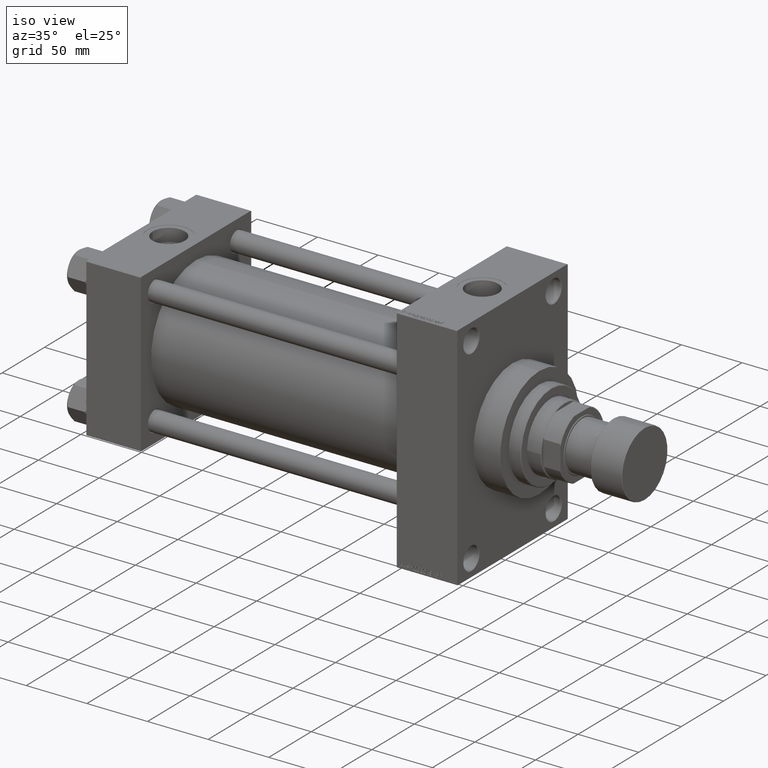
[diagram: clean part render]
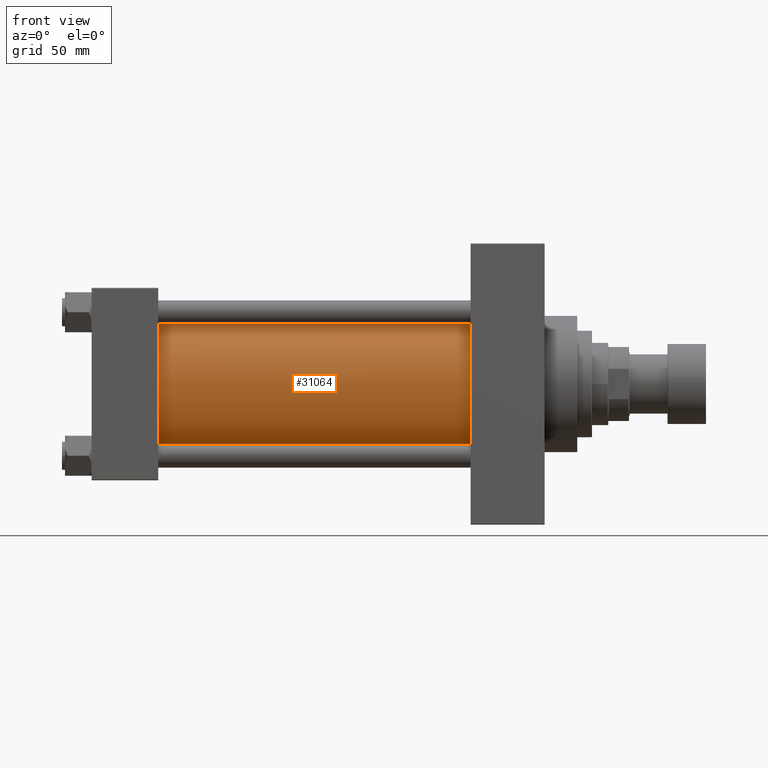
[diagram: tour spotlight — one face highlighted and labeled with its STEP entity id]
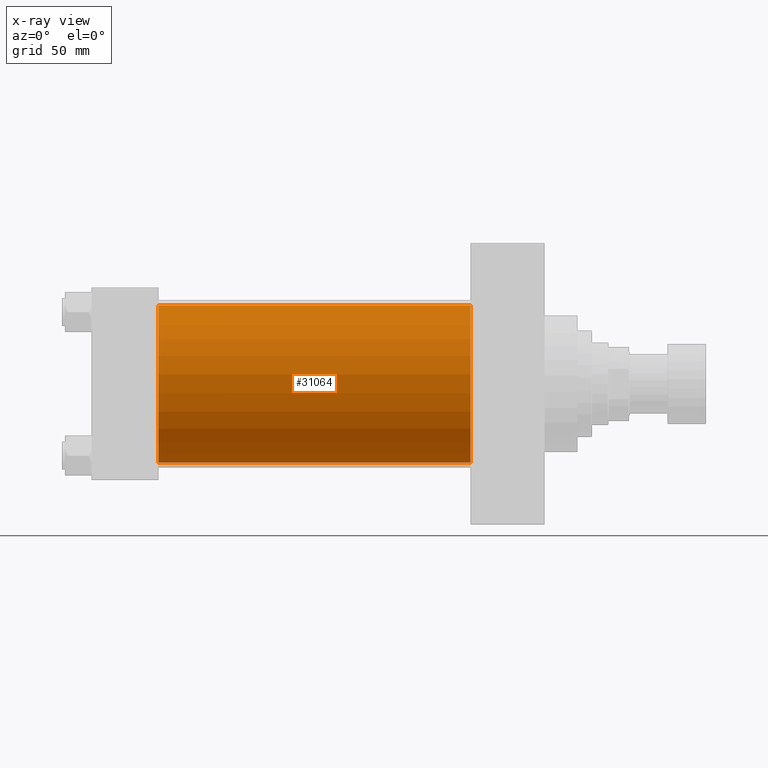
[diagram: x-ray of the same camera — body ghosted, this tour face saturated]
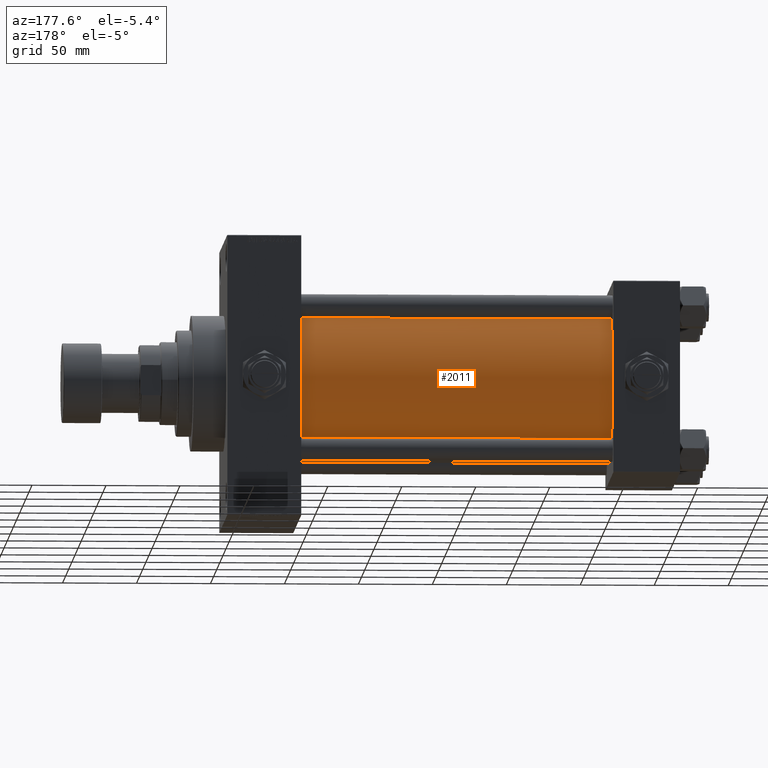
[diagram: tour spotlight — one face highlighted and labeled with its STEP entity id]
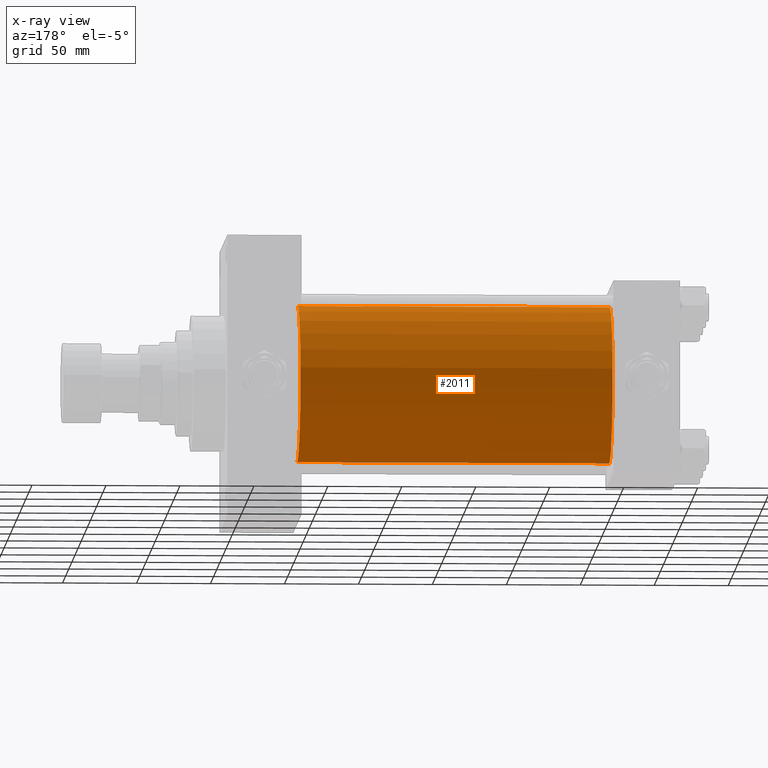
[diagram: x-ray of the same camera — body ghosted, this tour face saturated]
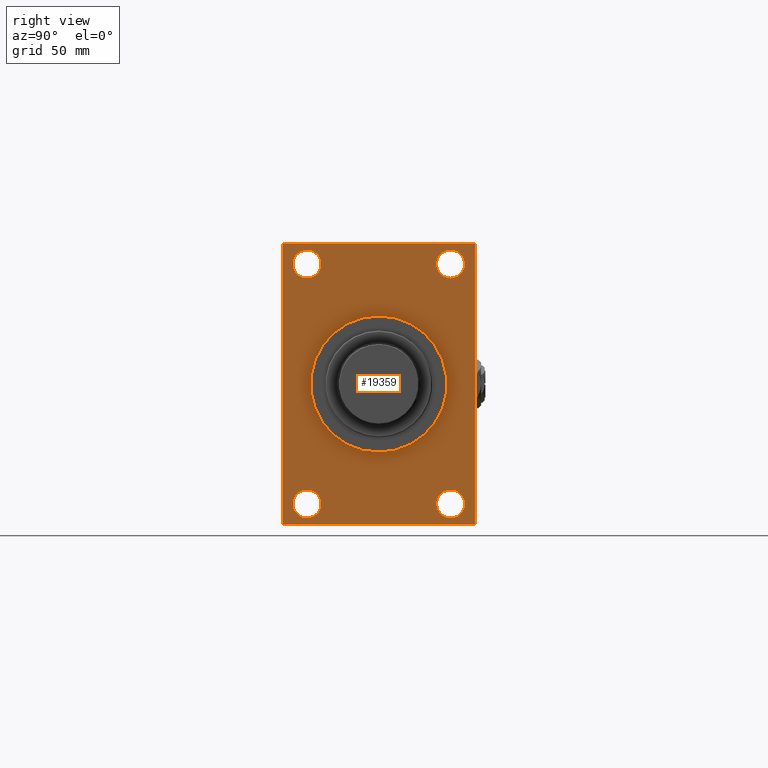
[diagram: tour spotlight — one face highlighted and labeled with its STEP entity id]
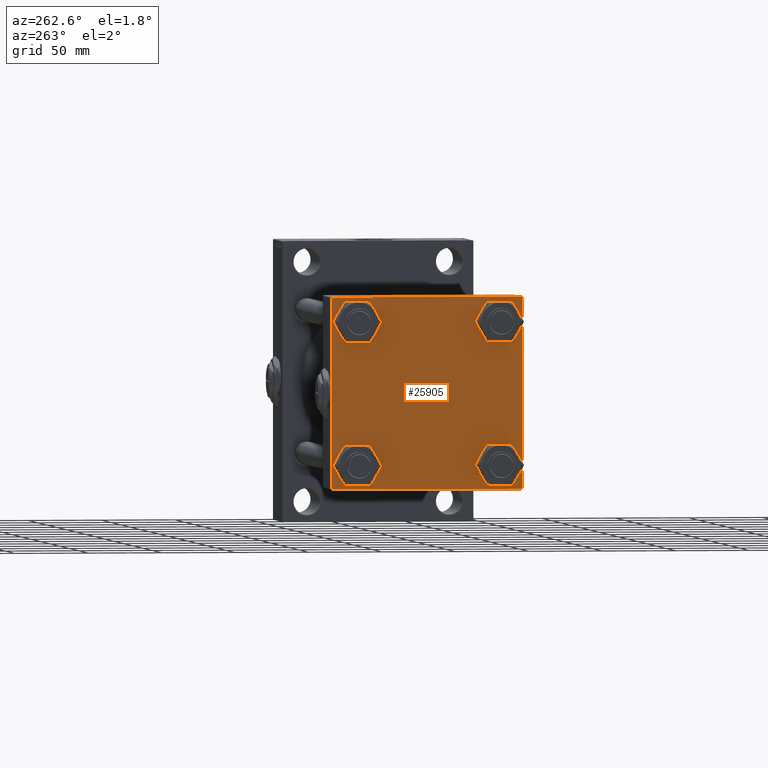
[diagram: tour spotlight — one face highlighted and labeled with its STEP entity id]
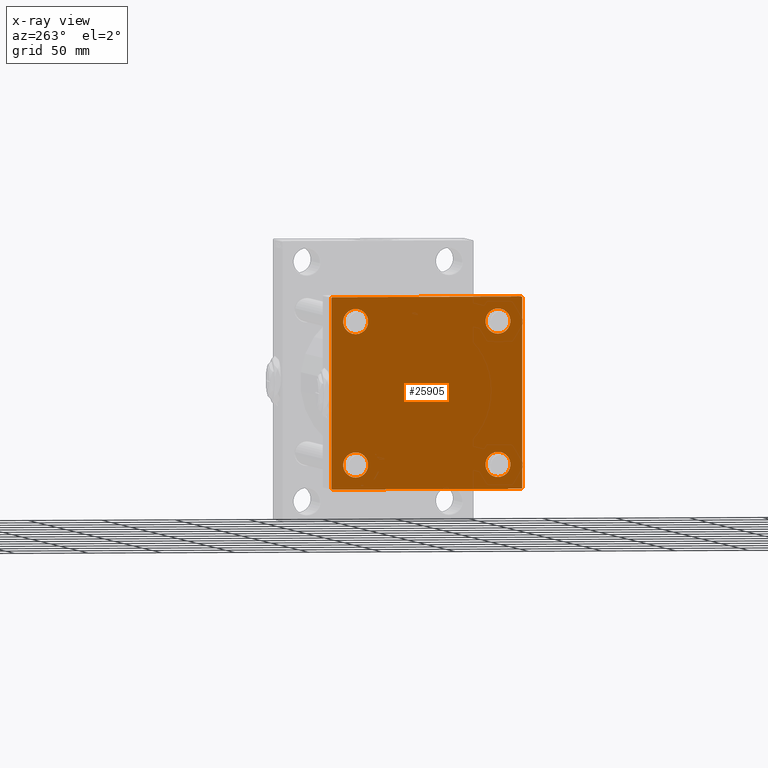
[diagram: x-ray of the same camera — body ghosted, this tour face saturated]
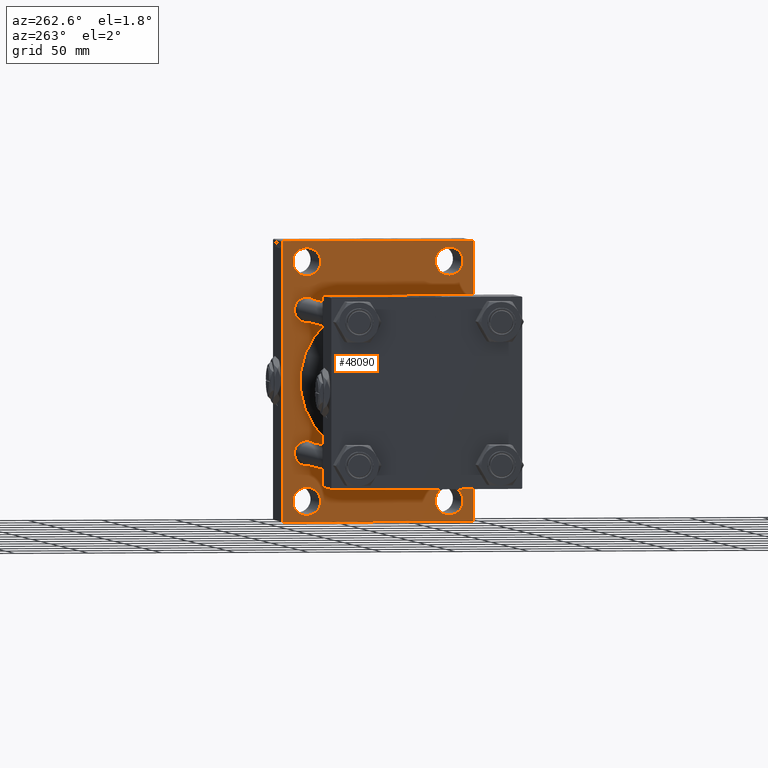
[diagram: tour spotlight — one face highlighted and labeled with its STEP entity id]
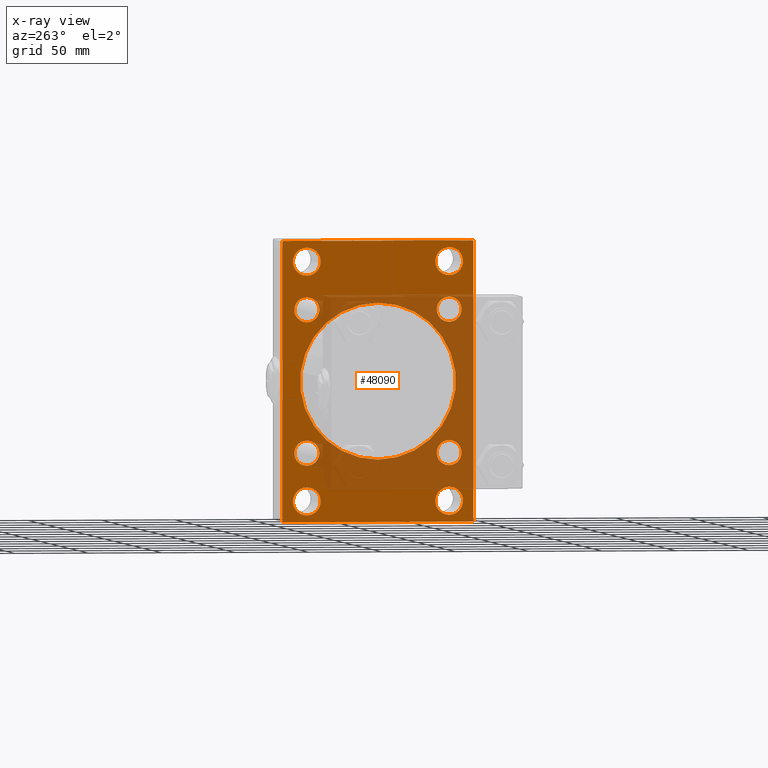
[diagram: x-ray of the same camera — body ghosted, this tour face saturated]
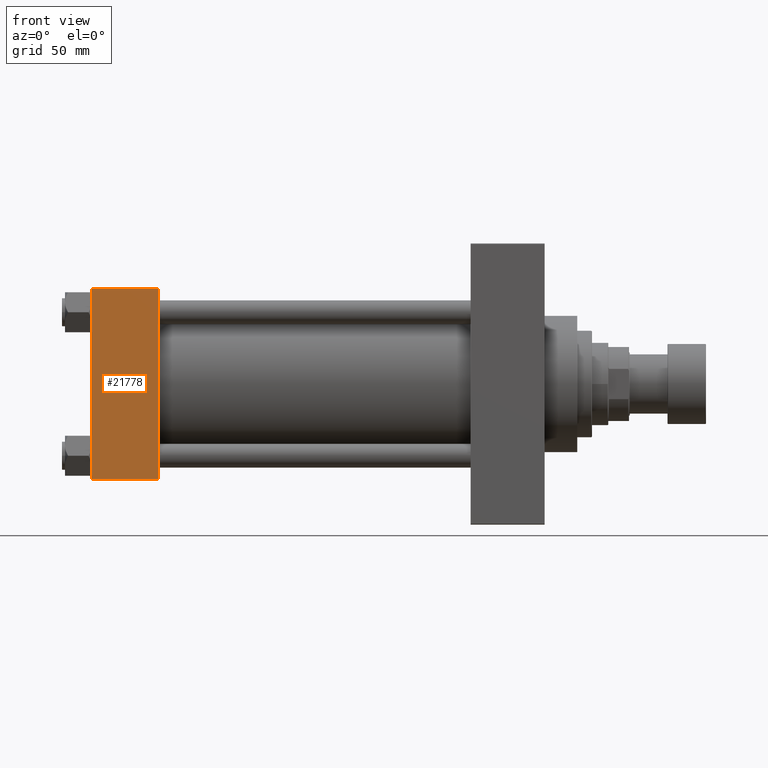
[diagram: tour spotlight — one face highlighted and labeled with its STEP entity id]
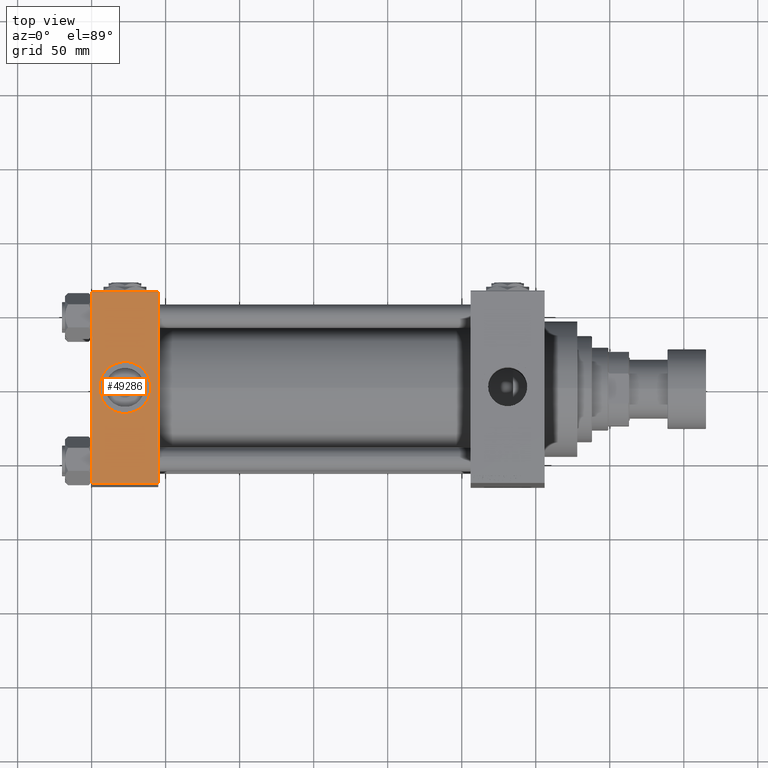
[diagram: tour spotlight — one face highlighted and labeled with its STEP entity id]
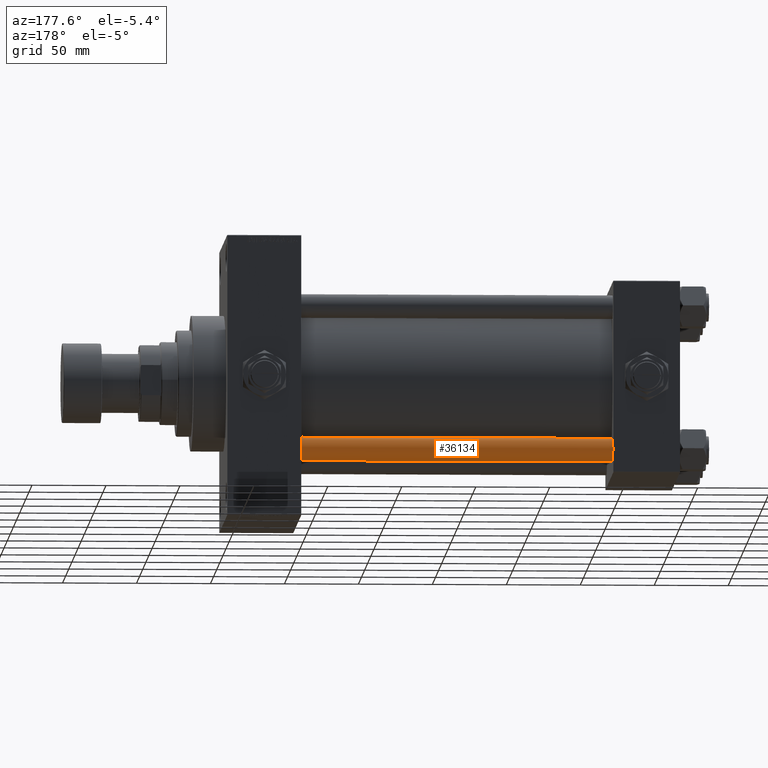
[diagram: tour spotlight — one face highlighted and labeled with its STEP entity id]
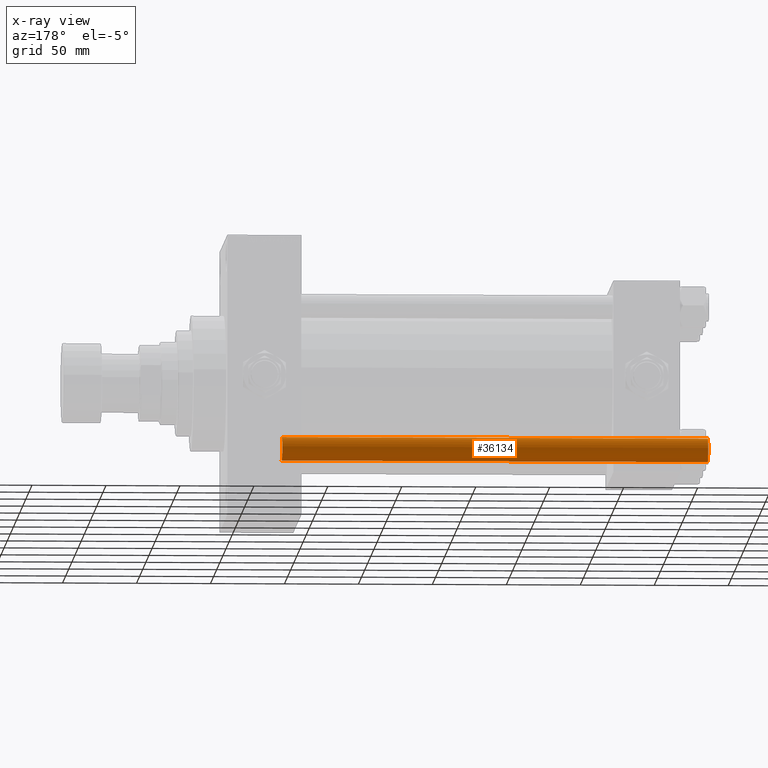
[diagram: x-ray of the same camera — body ghosted, this tour face saturated]
A machine part: a face-by-face anatomy tour. The part has 1266 B-rep faces; the first image is the clean iso view, then the 8 largest visible faces are spotlighted one at a time (largest first), each with its STEP entity span.

Face 1 — front view, entity #31064. An x-ray twin of the same camera follows (body ghosted, this face saturated) — the face is partly hidden behind the body. In plain terms, the highlighted cylindrical surface (partial cylindrical patch) has radius 53 mm, axis along (-1, -0, -0).
Definition (entity closure, byte-faithful):
#992 = FACE_OUTER_BOUND ( 'NONE', #26843, .T. ) ;
#2874 = VECTOR ( 'NONE', #46919, 1000.000000000000000 ) ;
#3575 = ORIENTED_EDGE ( 'NONE', *, *, #42083, .T. ) ;
#7692 = EDGE_CURVE ( 'NONE', #15186, #44545, #39144, .T. ) ;
#8281 = VECTOR ( 'NONE', #19635, 1000.000000000000000 ) ;
#8838 = CARTESIAN_POINT ( 'NONE',  ( 256.0000000000000000, -2.602085213965210642E-15, 53.00000000000000711 ) ) ;
#8891 = CARTESIAN_POINT ( 'NONE',  ( 256.0000000000000000, -2.602085213965210642E-15, 0.000000000000000000 ) ) ;
#11049 = EDGE_CURVE ( 'NONE', #18722, #39741, #14781, .T. ) ;
#11775 = ORIENTED_EDGE ( 'NONE', *, *, #49921, .F. ) ;
#14781 = CIRCLE ( 'NONE', #27770, 53.00000000000000711 ) ;
#15149 = CARTESIAN_POINT ( 'NONE',  ( 44.99999999999998579, -2.602085213965210642E-15, 0.000000000000000000 ) ) ;
#15186 = VERTEX_POINT ( 'NONE', #43898 ) ;
#16428 = AXIS2_PLACEMENT_3D ( 'NONE', #15149, #31655, #22767 ) ;
#18722 = VERTEX_POINT ( 'NONE', #8838 ) ;
#19635 = DIRECTION ( 'NONE',  ( -1.000000000000000000, -0.000000000000000000, -0.000000000000000000 ) ) ;
#22767 = DIRECTION ( 'NONE',  ( 0.000000000000000000, 0.000000000000000000, 1.000000000000000000 ) ) ;
#24402 = DIRECTION ( 'NONE',  ( -1.000000000000000000, -0.000000000000000000, -0.000000000000000000 ) ) ;
#25809 = ORIENTED_EDGE ( 'NONE', *, *, #11049, .F. ) ;
#26843 = EDGE_LOOP ( 'NONE', ( #11775, #25809, #3575, #35866 ) ) ;
#27471 = DIRECTION ( 'NONE',  ( 0.000000000000000000, 0.000000000000000000, 1.000000000000000000 ) ) ;
#27497 = CARTESIAN_POINT ( 'NONE',  ( 44.99999999999998579, 3.888542821515762466E-15, -53.00000000000000711 ) ) ;
#27770 = AXIS2_PLACEMENT_3D ( 'NONE', #35161, #47369, #28035 ) ;
#28035 = DIRECTION ( 'NONE',  ( 0.000000000000000000, 0.000000000000000000, -1.000000000000000000 ) ) ;
#28292 = LINE ( 'NONE', #36170, #8281 ) ;
#31064 = ADVANCED_FACE ( 'NONE', ( #992 ), #43750, .T. ) ;
#31655 = DIRECTION ( 'NONE',  ( 1.000000000000000000, -0.000000000000000000, 0.000000000000000000 ) ) ;
#35161 = CARTESIAN_POINT ( 'NONE',  ( 256.0000000000000000, -2.602085213965210642E-15, 0.000000000000000000 ) ) ;
#35214 = CARTESIAN_POINT ( 'NONE',  ( 256.0000000000000000, 3.888542821515762466E-15, -53.00000000000000711 ) ) ;
#35866 = ORIENTED_EDGE ( 'NONE', *, *, #7692, .T. ) ;
#36170 = CARTESIAN_POINT ( 'NONE',  ( 256.0000000000000000, -2.602085213965210642E-15, 53.00000000000000711 ) ) ;
#38804 = CARTESIAN_POINT ( 'NONE',  ( 256.0000000000000000, 3.888542821515762466E-15, -53.00000000000000711 ) ) ;
#39144 = CIRCLE ( 'NONE', #16428, 53.00000000000000711 ) ;
#39741 = VERTEX_POINT ( 'NONE', #38804 ) ;
#40517 = AXIS2_PLACEMENT_3D ( 'NONE', #8891, #24402, #27471 ) ;
#42083 = EDGE_CURVE ( 'NONE', #18722, #15186, #28292, .T. ) ;
#42589 = LINE ( 'NONE', #35214, #2874 ) ;
#43750 = CYLINDRICAL_SURFACE ( 'NONE', #40517, 53.00000000000000711 ) ;
#43898 = CARTESIAN_POINT ( 'NONE',  ( 44.99999999999998579, -2.602085213965210642E-15, 53.00000000000000711 ) ) ;
#44545 = VERTEX_POINT ( 'NONE', #27497 ) ;
#46919 = DIRECTION ( 'NONE',  ( -1.000000000000000000, -0.000000000000000000, -0.000000000000000000 ) ) ;
#47369 = DIRECTION ( 'NONE',  ( 1.000000000000000000, 0.000000000000000000, 0.000000000000000000 ) ) ;
#49921 = EDGE_CURVE ( 'NONE', #39741, #44545, #42589, .T. ) ;

Face 2 — auxiliary view, entity #2011. An x-ray twin of the same camera follows (body ghosted, this face saturated) — the face is partly hidden behind the body. In plain terms, the highlighted cylindrical surface (partial cylindrical patch) has radius 53 mm, axis along (-1, -0, -0).
Definition (entity closure, byte-faithful):
#1728 = DIRECTION ( 'NONE',  ( 0.000000000000000000, 0.000000000000000000, 1.000000000000000000 ) ) ;
#2011 = ADVANCED_FACE ( 'NONE', ( #13448 ), #33528, .T. ) ;
#2226 = DIRECTION ( 'NONE',  ( -1.000000000000000000, -0.000000000000000000, -0.000000000000000000 ) ) ;
#2264 = DIRECTION ( 'NONE',  ( 0.000000000000000000, 0.000000000000000000, 1.000000000000000000 ) ) ;
#2327 = ORIENTED_EDGE ( 'NONE', *, *, #42083, .F. ) ;
#2874 = VECTOR ( 'NONE', #46919, 1000.000000000000000 ) ;
#8281 = VECTOR ( 'NONE', #19635, 1000.000000000000000 ) ;
#8838 = CARTESIAN_POINT ( 'NONE',  ( 256.0000000000000000, -2.602085213965210642E-15, 53.00000000000000711 ) ) ;
#9624 = CARTESIAN_POINT ( 'NONE',  ( 256.0000000000000000, -2.602085213965210642E-15, 0.000000000000000000 ) ) ;
#10725 = CIRCLE ( 'NONE', #24559, 53.00000000000000711 ) ;
#10959 = EDGE_LOOP ( 'NONE', ( #16911, #41498, #39112, #2327 ) ) ;
#13448 = FACE_OUTER_BOUND ( 'NONE', #10959, .T. ) ;
#15186 = VERTEX_POINT ( 'NONE', #43898 ) ;
#16911 = ORIENTED_EDGE ( 'NONE', *, *, #41583, .F. ) ;
#18722 = VERTEX_POINT ( 'NONE', #8838 ) ;
#19635 = DIRECTION ( 'NONE',  ( -1.000000000000000000, -0.000000000000000000, -0.000000000000000000 ) ) ;
#24423 = CARTESIAN_POINT ( 'NONE',  ( 44.99999999999998579, -2.602085213965210642E-15, 0.000000000000000000 ) ) ;
#24559 = AXIS2_PLACEMENT_3D ( 'NONE', #35532, #48002, #36546 ) ;
#25032 = CIRCLE ( 'NONE', #38942, 53.00000000000000711 ) ;
#27497 = CARTESIAN_POINT ( 'NONE',  ( 44.99999999999998579, 3.888542821515762466E-15, -53.00000000000000711 ) ) ;
#28292 = LINE ( 'NONE', #36170, #8281 ) ;
#32055 = EDGE_CURVE ( 'NONE', #44545, #15186, #25032, .T. ) ;
#33528 = CYLINDRICAL_SURFACE ( 'NONE', #43031, 53.00000000000000711 ) ;
#35214 = CARTESIAN_POINT ( 'NONE',  ( 256.0000000000000000, 3.888542821515762466E-15, -53.00000000000000711 ) ) ;
#35532 = CARTESIAN_POINT ( 'NONE',  ( 256.0000000000000000, -2.602085213965210642E-15, 0.000000000000000000 ) ) ;
#36170 = CARTESIAN_POINT ( 'NONE',  ( 256.0000000000000000, -2.602085213965210642E-15, 53.00000000000000711 ) ) ;
#36546 = DIRECTION ( 'NONE',  ( 0.000000000000000000, 0.000000000000000000, -1.000000000000000000 ) ) ;
#38804 = CARTESIAN_POINT ( 'NONE',  ( 256.0000000000000000, 3.888542821515762466E-15, -53.00000000000000711 ) ) ;
#38942 = AXIS2_PLACEMENT_3D ( 'NONE', #24423, #44025, #2264 ) ;
#39112 = ORIENTED_EDGE ( 'NONE', *, *, #32055, .T. ) ;
#39741 = VERTEX_POINT ( 'NONE', #38804 ) ;
#41498 = ORIENTED_EDGE ( 'NONE', *, *, #49921, .T. ) ;
#41583 = EDGE_CURVE ( 'NONE', #39741, #18722, #10725, .T. ) ;
#42083 = EDGE_CURVE ( 'NONE', #18722, #15186, #28292, .T. ) ;
#42589 = LINE ( 'NONE', #35214, #2874 ) ;
#43031 = AXIS2_PLACEMENT_3D ( 'NONE', #9624, #2226, #1728 ) ;
#43898 = CARTESIAN_POINT ( 'NONE',  ( 44.99999999999998579, -2.602085213965210642E-15, 53.00000000000000711 ) ) ;
#44025 = DIRECTION ( 'NONE',  ( 1.000000000000000000, -0.000000000000000000, 0.000000000000000000 ) ) ;
#44545 = VERTEX_POINT ( 'NONE', #27497 ) ;
#46919 = DIRECTION ( 'NONE',  ( -1.000000000000000000, -0.000000000000000000, -0.000000000000000000 ) ) ;
#48002 = DIRECTION ( 'NONE',  ( 1.000000000000000000, 0.000000000000000000, 0.000000000000000000 ) ) ;
#49921 = EDGE_CURVE ( 'NONE', #39741, #44545, #42589, .T. ) ;

Face 3 — right view, entity #19359. In plain terms, the highlighted planar face has unit normal (-1, 0, 0).
Definition (entity closure, byte-faithful):
#63 = DIRECTION ( 'NONE',  ( -1.000000000000000000, 0.000000000000000000, -0.000000000000000000 ) ) ;
#155 = VECTOR ( 'NONE', #32030, 1000.000000000000000 ) ;
#501 = EDGE_LOOP ( 'NONE', ( #39413, #30076 ) ) ;
#1051 = DIRECTION ( 'NONE',  ( -0.000000000000000000, 0.7071067811865573427, 0.7071067811865378028 ) ) ;
#1058 = CARTESIAN_POINT ( 'NONE',  ( 306.0000000000000000, -65.00000000000001421, 94.99999999999997158 ) ) ;
#1336 = ORIENTED_EDGE ( 'NONE', *, *, #34623, .T. ) ;
#1396 = ORIENTED_EDGE ( 'NONE', *, *, #39800, .F. ) ;
#1837 = EDGE_CURVE ( 'NONE', #13721, #23985, #48669, .T. ) ;
#2281 = CIRCLE ( 'NONE', #29940, 46.00000000000000000 ) ;
#2453 = VECTOR ( 'NONE', #24994, 1000.000000000000000 ) ;
#3050 = ORIENTED_EDGE ( 'NONE', *, *, #29483, .T. ) ;
#3096 = DIRECTION ( 'NONE',  ( 0.000000000000000000, 7.304098846218135653E-17, -1.000000000000000000 ) ) ;
#3345 = LINE ( 'NONE', #37973, #44862 ) ;
#3870 = EDGE_CURVE ( 'NONE', #6779, #46019, #31090, .T. ) ;
#4229 = EDGE_CURVE ( 'NONE', #6779, #28873, #5902, .T. ) ;
#5342 = FACE_BOUND ( 'NONE', #501, .T. ) ;
#5593 = CARTESIAN_POINT ( 'NONE',  ( 306.0000000000000000, 48.50000000000000711, 71.49999999999994316 ) ) ;
#5829 = FACE_BOUND ( 'NONE', #42426, .T. ) ;
#5902 = LINE ( 'NONE', #6407, #2453 ) ;
#5989 = DIRECTION ( 'NONE',  ( -1.000000000000000000, 0.000000000000000000, -0.000000000000000000 ) ) ;
#6231 = CARTESIAN_POINT ( 'NONE',  ( 306.0000000000000000, 0.000000000000000000, 46.00000000000000000 ) ) ;
#6407 = CARTESIAN_POINT ( 'NONE',  ( 306.0000000000000000, 64.99999999999998579, -95.00000000000001421 ) ) ;
#6779 = VERTEX_POINT ( 'NONE', #8345 ) ;
#7206 = CARTESIAN_POINT ( 'NONE',  ( 306.0000000000000000, -64.50000000000008527, 94.99999999999997158 ) ) ;
#7226 = CARTESIAN_POINT ( 'NONE',  ( 306.0000000000000000, 48.50000000000000711, -90.50000000000014211 ) ) ;
#7260 = CARTESIAN_POINT ( 'NONE',  ( 306.0000000000000000, 64.99999999999997158, 94.50000000000002842 ) ) ;
#8109 = DIRECTION ( 'NONE',  ( -1.000000000000000000, 0.000000000000000000, -0.000000000000000000 ) ) ;
#8296 = DIRECTION ( 'NONE',  ( 0.000000000000000000, 0.000000000000000000, 1.000000000000000000 ) ) ;
#8345 = CARTESIAN_POINT ( 'NONE',  ( 306.0000000000000000, 64.49999999999998579, -95.00000000000001421 ) ) ;
#8370 = EDGE_LOOP ( 'NONE', ( #1396, #42813 ) ) ;
#8651 = CARTESIAN_POINT ( 'NONE',  ( 306.0000000000000000, 0.000000000000000000, 0.000000000000000000 ) ) ;
#8672 = EDGE_LOOP ( 'NONE', ( #37663, #37049, #20776, #16277, #38238, #3050, #30376, #43199 ) ) ;
#8762 = CARTESIAN_POINT ( 'NONE',  ( 306.0000000000000000, -65.00000000000001421, -94.50000000000008527 ) ) ;
#8795 = DIRECTION ( 'NONE',  ( 1.000000000000000000, 0.000000000000000000, 0.000000000000000000 ) ) ;
#8864 = AXIS2_PLACEMENT_3D ( 'NONE', #39148, #8109, #43224 ) ;
#9052 = AXIS2_PLACEMENT_3D ( 'NONE', #46193, #22534, #38056 ) ;
#9661 = FACE_BOUND ( 'NONE', #8370, .T. ) ;
#9662 = EDGE_LOOP ( 'NONE', ( #1336, #21887 ) ) ;
#9911 = VECTOR ( 'NONE', #35916, 1000.000000000000000 ) ;
#10044 = DIRECTION ( 'NONE',  ( -1.000000000000000000, 0.000000000000000000, -0.000000000000000000 ) ) ;
#10139 = VERTEX_POINT ( 'NONE', #6231 ) ;
#10198 = DIRECTION ( 'NONE',  ( 0.000000000000000000, 0.000000000000000000, 1.000000000000000000 ) ) ;
#11434 = EDGE_CURVE ( 'NONE', #11440, #43763, #23735, .T. ) ;
#11440 = VERTEX_POINT ( 'NONE', #18572 ) ;
#11550 = EDGE_CURVE ( 'NONE', #13810, #44080, #48320, .T. ) ;
#11665 = AXIS2_PLACEMENT_3D ( 'NONE', #19407, #63, #39000 ) ;
#11760 = VERTEX_POINT ( 'NONE', #8762 ) ;
#12011 = EDGE_CURVE ( 'NONE', #19338, #11760, #27278, .T. ) ;
#12349 = AXIS2_PLACEMENT_3D ( 'NONE', #49623, #44803, #10198 ) ;
#12597 = EDGE_CURVE ( 'NONE', #44080, #19338, #39079, .T. ) ;
#13466 = CARTESIAN_POINT ( 'NONE',  ( 306.0000000000000000, 5.633375276077824704E-15, -46.00000000000000000 ) ) ;
#13615 = EDGE_CURVE ( 'NONE', #38620, #24088, #41688, .T. ) ;
#13721 = VERTEX_POINT ( 'NONE', #7226 ) ;
#13757 = ORIENTED_EDGE ( 'NONE', *, *, #13615, .T. ) ;
#13810 = VERTEX_POINT ( 'NONE', #36222 ) ;
#14861 = VECTOR ( 'NONE', #38825, 1000.000000000000114 ) ;
#14971 = CARTESIAN_POINT ( 'NONE',  ( 306.0000000000000000, -48.49999999999999289, -71.49999999999990052 ) ) ;
#15151 = VERTEX_POINT ( 'NONE', #7260 ) ;
#15371 = VECTOR ( 'NONE', #21846, 1000.000000000000000 ) ;
#15397 = EDGE_CURVE ( 'NONE', #24088, #38620, #48242, .T. ) ;
#16167 = AXIS2_PLACEMENT_3D ( 'NONE', #47253, #31718, #16726 ) ;
#16277 = ORIENTED_EDGE ( 'NONE', *, *, #3870, .T. ) ;
#16726 = DIRECTION ( 'NONE',  ( 0.000000000000000000, 0.000000000000000000, 1.000000000000000000 ) ) ;
#16948 = CARTESIAN_POINT ( 'NONE',  ( 306.0000000000000000, 0.000000000000000000, 0.000000000000000000 ) ) ;
#17084 = ORIENTED_EDGE ( 'NONE', *, *, #11434, .T. ) ;
#17289 = CARTESIAN_POINT ( 'NONE',  ( 306.0000000000000000, -64.50000000000001421, -95.00000000000002842 ) ) ;
#18572 = CARTESIAN_POINT ( 'NONE',  ( 306.0000000000000000, 48.50000000000000711, 90.50000000000007105 ) ) ;
#18685 = CARTESIAN_POINT ( 'NONE',  ( 306.0000000000000000, -48.49999999999999289, -81.00000000000001421 ) ) ;
#19117 = AXIS2_PLACEMENT_3D ( 'NONE', #8651, #40454, #44519 ) ;
#19208 = CARTESIAN_POINT ( 'NONE',  ( 306.0000000000000000, -48.49999999999999289, -90.50000000000014211 ) ) ;
#19319 = VECTOR ( 'NONE', #33965, 1000.000000000000000 ) ;
#19338 = VERTEX_POINT ( 'NONE', #35126 ) ;
#19359 = ADVANCED_FACE ( 'NONE', ( #24681, #5829, #5342, #44275, #9661, #47590 ), #44023, .F. ) ;
#19407 = CARTESIAN_POINT ( 'NONE',  ( 306.0000000000000000, -48.49999999999999289, -81.00000000000001421 ) ) ;
#20776 = ORIENTED_EDGE ( 'NONE', *, *, #4229, .F. ) ;
#21429 = VERTEX_POINT ( 'NONE', #13466 ) ;
#21846 = DIRECTION ( 'NONE',  ( 0.000000000000000000, 0.7071067811865868746, -0.7071067811865081598 ) ) ;
#21887 = ORIENTED_EDGE ( 'NONE', *, *, #24874, .T. ) ;
#22534 = DIRECTION ( 'NONE',  ( 1.000000000000000000, 0.000000000000000000, 0.000000000000000000 ) ) ;
#22559 = CIRCLE ( 'NONE', #38005, 9.500000000000063949 ) ;
#22971 = AXIS2_PLACEMENT_3D ( 'NONE', #18685, #5989, #33211 ) ;
#23735 = CIRCLE ( 'NONE', #12349, 9.500000000000063949 ) ;
#23795 = EDGE_CURVE ( 'NONE', #23985, #13721, #49509, .T. ) ;
#23985 = VERTEX_POINT ( 'NONE', #31164 ) ;
#24088 = VERTEX_POINT ( 'NONE', #19208 ) ;
#24681 = FACE_BOUND ( 'NONE', #9662, .T. ) ;
#24794 = DIRECTION ( 'NONE',  ( -1.000000000000000000, 0.000000000000000000, -0.000000000000000000 ) ) ;
#24814 = DIRECTION ( 'NONE',  ( 0.000000000000000000, 0.000000000000000000, -1.000000000000000000 ) ) ;
#24874 = EDGE_CURVE ( 'NONE', #41066, #29054, #42719, .T. ) ;
#24994 = DIRECTION ( 'NONE',  ( 0.000000000000000000, -1.000000000000000000, -1.067522139062650425E-16 ) ) ;
#25414 = LINE ( 'NONE', #17289, #15371 ) ;
#27278 = LINE ( 'NONE', #1058, #9911 ) ;
#28181 = EDGE_CURVE ( 'NONE', #43763, #11440, #22559, .T. ) ;
#28873 = VERTEX_POINT ( 'NONE', #38651 ) ;
#28875 = DIRECTION ( 'NONE',  ( 0.000000000000000000, 0.000000000000000000, 1.000000000000000000 ) ) ;
#29054 = VERTEX_POINT ( 'NONE', #33279 ) ;
#29128 = CARTESIAN_POINT ( 'NONE',  ( 306.0000000000000000, 48.50000000000000711, 81.00000000000000000 ) ) ;
#29483 = EDGE_CURVE ( 'NONE', #15151, #13810, #30642, .T. ) ;
#29940 = AXIS2_PLACEMENT_3D ( 'NONE', #16948, #8795, #24814 ) ;
#30076 = ORIENTED_EDGE ( 'NONE', *, *, #23795, .T. ) ;
#30376 = ORIENTED_EDGE ( 'NONE', *, *, #11550, .T. ) ;
#30642 = LINE ( 'NONE', #45673, #19319 ) ;
#31090 = LINE ( 'NONE', #35168, #33336 ) ;
#31164 = CARTESIAN_POINT ( 'NONE',  ( 306.0000000000000000, 48.50000000000000711, -71.49999999999990052 ) ) ;
#31237 = EDGE_CURVE ( 'NONE', #11760, #28873, #25414, .T. ) ;
#31596 = CIRCLE ( 'NONE', #41336, 9.500000000000063949 ) ;
#31718 = DIRECTION ( 'NONE',  ( -1.000000000000000000, 0.000000000000000000, -0.000000000000000000 ) ) ;
#32030 = DIRECTION ( 'NONE',  ( 0.000000000000000000, -1.000000000000000000, 0.000000000000000000 ) ) ;
#32460 = CARTESIAN_POINT ( 'NONE',  ( 306.0000000000000000, 64.99999999999998579, -94.50000000000002842 ) ) ;
#33211 = DIRECTION ( 'NONE',  ( 0.000000000000000000, 0.000000000000000000, 1.000000000000000000 ) ) ;
#33279 = CARTESIAN_POINT ( 'NONE',  ( 306.0000000000000000, -48.50000000000000000, 71.49999999999994316 ) ) ;
#33336 = VECTOR ( 'NONE', #1051, 1000.000000000000000 ) ;
#33337 = ORIENTED_EDGE ( 'NONE', *, *, #28181, .T. ) ;
#33599 = EDGE_CURVE ( 'NONE', #21429, #10139, #2281, .T. ) ;
#33965 = DIRECTION ( 'NONE',  ( 0.000000000000000000, -0.7071067811865868746, 0.7071067811865081598 ) ) ;
#34623 = EDGE_CURVE ( 'NONE', #29054, #41066, #31596, .T. ) ;
#35126 = CARTESIAN_POINT ( 'NONE',  ( 306.0000000000000000, -65.00000000000001421, 94.49999999999997158 ) ) ;
#35168 = CARTESIAN_POINT ( 'NONE',  ( 306.0000000000000000, 64.99999999999998579, -94.50000000000002842 ) ) ;
#35916 = DIRECTION ( 'NONE',  ( 0.000000000000000000, 0.000000000000000000, -1.000000000000000000 ) ) ;
#36222 = CARTESIAN_POINT ( 'NONE',  ( 306.0000000000000000, 64.49999999999997158, 94.99999999999997158 ) ) ;
#37049 = ORIENTED_EDGE ( 'NONE', *, *, #31237, .T. ) ;
#37663 = ORIENTED_EDGE ( 'NONE', *, *, #12011, .T. ) ;
#37973 = CARTESIAN_POINT ( 'NONE',  ( 306.0000000000000000, 64.99999999999997158, 94.99999999999997158 ) ) ;
#38005 = AXIS2_PLACEMENT_3D ( 'NONE', #29128, #10044, #44651 ) ;
#38056 = DIRECTION ( 'NONE',  ( 0.000000000000000000, 0.000000000000000000, -1.000000000000000000 ) ) ;
#38238 = ORIENTED_EDGE ( 'NONE', *, *, #41299, .F. ) ;
#38620 = VERTEX_POINT ( 'NONE', #14971 ) ;
#38651 = CARTESIAN_POINT ( 'NONE',  ( 306.0000000000000000, -64.50000000000001421, -95.00000000000002842 ) ) ;
#38825 = DIRECTION ( 'NONE',  ( -0.000000000000000000, -0.7071067811864985009, -0.7071067811865965336 ) ) ;
#39000 = DIRECTION ( 'NONE',  ( 0.000000000000000000, 0.000000000000000000, 1.000000000000000000 ) ) ;
#39079 = LINE ( 'NONE', #50038, #14861 ) ;
#39148 = CARTESIAN_POINT ( 'NONE',  ( 306.0000000000000000, 48.50000000000000711, -81.00000000000001421 ) ) ;
#39413 = ORIENTED_EDGE ( 'NONE', *, *, #1837, .T. ) ;
#39596 = CARTESIAN_POINT ( 'NONE',  ( 306.0000000000000000, -48.50000000000000000, 81.00000000000000000 ) ) ;
#39800 = EDGE_CURVE ( 'NONE', #10139, #21429, #45590, .T. ) ;
#40077 = CARTESIAN_POINT ( 'NONE',  ( 306.0000000000000000, -48.50000000000000000, 81.00000000000000000 ) ) ;
#40185 = CARTESIAN_POINT ( 'NONE',  ( 306.0000000000000000, 64.99999999999997158, 94.99999999999997158 ) ) ;
#40303 = AXIS2_PLACEMENT_3D ( 'NONE', #40077, #24794, #28875 ) ;
#40454 = DIRECTION ( 'NONE',  ( -1.000000000000000000, 0.000000000000000000, -0.000000000000000000 ) ) ;
#41066 = VERTEX_POINT ( 'NONE', #47680 ) ;
#41299 = EDGE_CURVE ( 'NONE', #15151, #46019, #3345, .T. ) ;
#41336 = AXIS2_PLACEMENT_3D ( 'NONE', #39596, #43161, #8296 ) ;
#41471 = ORIENTED_EDGE ( 'NONE', *, *, #15397, .T. ) ;
#41688 = CIRCLE ( 'NONE', #22971, 9.500000000000119016 ) ;
#42426 = EDGE_LOOP ( 'NONE', ( #41471, #13757 ) ) ;
#42719 = CIRCLE ( 'NONE', #40303, 9.500000000000063949 ) ;
#42813 = ORIENTED_EDGE ( 'NONE', *, *, #33599, .F. ) ;
#43161 = DIRECTION ( 'NONE',  ( -1.000000000000000000, 0.000000000000000000, -0.000000000000000000 ) ) ;
#43199 = ORIENTED_EDGE ( 'NONE', *, *, #12597, .T. ) ;
#43224 = DIRECTION ( 'NONE',  ( 0.000000000000000000, 0.000000000000000000, 1.000000000000000000 ) ) ;
#43510 = EDGE_LOOP ( 'NONE', ( #33337, #17084 ) ) ;
#43763 = VERTEX_POINT ( 'NONE', #5593 ) ;
#44023 = PLANE ( 'NONE',  #19117 ) ;
#44080 = VERTEX_POINT ( 'NONE', #7206 ) ;
#44275 = FACE_BOUND ( 'NONE', #43510, .T. ) ;
#44519 = DIRECTION ( 'NONE',  ( -0.000000000000000000, 0.000000000000000000, 1.000000000000000000 ) ) ;
#44651 = DIRECTION ( 'NONE',  ( 0.000000000000000000, 0.000000000000000000, 1.000000000000000000 ) ) ;
#44803 = DIRECTION ( 'NONE',  ( -1.000000000000000000, 0.000000000000000000, -0.000000000000000000 ) ) ;
#44862 = VECTOR ( 'NONE', #3096, 1000.000000000000000 ) ;
#45590 = CIRCLE ( 'NONE', #9052, 46.00000000000000000 ) ;
#45673 = CARTESIAN_POINT ( 'NONE',  ( 306.0000000000000000, 64.49999999999997158, 94.99999999999997158 ) ) ;
#46019 = VERTEX_POINT ( 'NONE', #32460 ) ;
#46193 = CARTESIAN_POINT ( 'NONE',  ( 306.0000000000000000, 0.000000000000000000, 0.000000000000000000 ) ) ;
#47253 = CARTESIAN_POINT ( 'NONE',  ( 306.0000000000000000, 48.50000000000000711, -81.00000000000001421 ) ) ;
#47590 = FACE_OUTER_BOUND ( 'NONE', #8672, .T. ) ;
#47680 = CARTESIAN_POINT ( 'NONE',  ( 306.0000000000000000, -48.50000000000000000, 90.50000000000007105 ) ) ;
#48242 = CIRCLE ( 'NONE', #11665, 9.500000000000119016 ) ;
#48320 = LINE ( 'NONE', #40185, #155 ) ;
#48669 = CIRCLE ( 'NONE', #8864, 9.500000000000119016 ) ;
#49509 = CIRCLE ( 'NONE', #16167, 9.500000000000119016 ) ;
#49623 = CARTESIAN_POINT ( 'NONE',  ( 306.0000000000000000, 48.50000000000000711, 81.00000000000000000 ) ) ;
#50038 = CARTESIAN_POINT ( 'NONE',  ( 306.0000000000000000, -65.00000000000001421, 94.49999999999997158 ) ) ;

Face 4 — auxiliary view, entity #25905. An x-ray twin of the same camera follows (body ghosted, this face saturated) — the face is partly hidden behind the body. In plain terms, the highlighted planar face has unit normal (-1, 0, 0).
Definition (entity closure, byte-faithful):
#448 = CARTESIAN_POINT ( 'NONE',  ( 0.000000000000000000, 65.00000000000000000, -64.49999999999995737 ) ) ;
#559 = DIRECTION ( 'NONE',  ( -0.000000000000000000, 0.7071067811865672237, 0.7071067811865279218 ) ) ;
#942 = ORIENTED_EDGE ( 'NONE', *, *, #29295, .T. ) ;
#1157 = CARTESIAN_POINT ( 'NONE',  ( 0.000000000000000000, -48.44999999999999574, -56.95000000000003837 ) ) ;
#1352 = DIRECTION ( 'NONE',  ( 0.000000000000000000, -1.000000000000000000, -1.067522139062650425E-16 ) ) ;
#1685 = DIRECTION ( 'NONE',  ( 0.000000000000000000, 0.000000000000000000, -1.000000000000000000 ) ) ;
#1707 = CIRCLE ( 'NONE', #6576, 8.500000000000007105 ) ;
#2021 = EDGE_CURVE ( 'NONE', #31863, #46831, #48714, .T. ) ;
#2056 = DIRECTION ( 'NONE',  ( 0.000000000000000000, 0.000000000000000000, 1.000000000000000000 ) ) ;
#2133 = DIRECTION ( 'NONE',  ( 0.000000000000000000, 0.7071067811865474617, -0.7071067811865474617 ) ) ;
#2650 = LINE ( 'NONE', #45410, #45041 ) ;
#2684 = ORIENTED_EDGE ( 'NONE', *, *, #23830, .F. ) ;
#2989 = DIRECTION ( 'NONE',  ( -0.000000000000000000, 0.000000000000000000, 1.000000000000000000 ) ) ;
#2997 = DIRECTION ( 'NONE',  ( 0.000000000000000000, 0.000000000000000000, 1.000000000000000000 ) ) ;
#3011 = CIRCLE ( 'NONE', #31457, 8.500000000000007105 ) ;
#3248 = EDGE_LOOP ( 'NONE', ( #14653, #46006 ) ) ;
#3583 = LINE ( 'NONE', #34383, #26043 ) ;
#3608 = VERTEX_POINT ( 'NONE', #40060 ) ;
#3998 = EDGE_CURVE ( 'NONE', #3608, #39682, #14678, .T. ) ;
#4366 = EDGE_CURVE ( 'NONE', #27790, #45831, #3583, .T. ) ;
#5045 = VECTOR ( 'NONE', #2133, 1000.000000000000114 ) ;
#5201 = VERTEX_POINT ( 'NONE', #1157 ) ;
#5616 = VECTOR ( 'NONE', #1685, 1000.000000000000000 ) ;
#6412 = EDGE_CURVE ( 'NONE', #10204, #39676, #20700, .T. ) ;
#6576 = AXIS2_PLACEMENT_3D ( 'NONE', #14473, #29986, #2997 ) ;
#6672 = CIRCLE ( 'NONE', #42448, 8.500000000000007105 ) ;
#7148 = CIRCLE ( 'NONE', #10411, 8.500000000000007105 ) ;
#7191 = LINE ( 'NONE', #14601, #5045 ) ;
#7697 = CARTESIAN_POINT ( 'NONE',  ( -0.000000000000000000, -64.74999999999819522, 64.75000000000179057 ) ) ;
#7811 = DIRECTION ( 'NONE',  ( 1.000000000000000000, -0.000000000000000000, 0.000000000000000000 ) ) ;
#7902 = DIRECTION ( 'NONE',  ( 1.000000000000000000, -0.000000000000000000, 0.000000000000000000 ) ) ;
#8148 = EDGE_CURVE ( 'NONE', #44568, #11281, #6672, .T. ) ;
#8285 = CARTESIAN_POINT ( 'NONE',  ( 0.000000000000000000, 48.45000000000000995, -56.95000000000002416 ) ) ;
#8590 = VERTEX_POINT ( 'NONE', #12340 ) ;
#8804 = EDGE_CURVE ( 'NONE', #10204, #41985, #7191, .T. ) ;
#8893 = EDGE_CURVE ( 'NONE', #39553, #39676, #34671, .T. ) ;
#9439 = CARTESIAN_POINT ( 'NONE',  ( 0.000000000000000000, 65.00000000000000000, 65.00000000000001421 ) ) ;
#9775 = ORIENTED_EDGE ( 'NONE', *, *, #8148, .T. ) ;
#10204 = VERTEX_POINT ( 'NONE', #50229 ) ;
#10411 = AXIS2_PLACEMENT_3D ( 'NONE', #16964, #32462, #31704 ) ;
#11281 = VERTEX_POINT ( 'NONE', #29278 ) ;
#11795 = DIRECTION ( 'NONE',  ( 0.000000000000000000, 0.000000000000000000, 1.000000000000000000 ) ) ;
#12340 = CARTESIAN_POINT ( 'NONE',  ( 0.000000000000000000, -48.44999999999999574, 39.95000000000001705 ) ) ;
#12394 = AXIS2_PLACEMENT_3D ( 'NONE', #49907, #7902, #27240 ) ;
#12660 = LINE ( 'NONE', #12911, #5616 ) ;
#12911 = CARTESIAN_POINT ( 'NONE',  ( 0.000000000000000000, -65.00000000000000000, 65.00000000000000000 ) ) ;
#13071 = EDGE_LOOP ( 'NONE', ( #23270, #40285, #32333, #41669, #2684, #23018, #46110, #24857 ) ) ;
#13263 = DIRECTION ( 'NONE',  ( 0.000000000000000000, 0.000000000000000000, -1.000000000000000000 ) ) ;
#13342 = CARTESIAN_POINT ( 'NONE',  ( 0.000000000000000000, 65.00000000000000000, 64.49999999999998579 ) ) ;
#14219 = FACE_BOUND ( 'NONE', #44050, .T. ) ;
#14473 = CARTESIAN_POINT ( 'NONE',  ( 0.000000000000000000, 48.45000000000000995, -48.45000000000001705 ) ) ;
#14601 = CARTESIAN_POINT ( 'NONE',  ( 0.000000000000000000, 64.74999999999998579, 64.74999999999998579 ) ) ;
#14653 = ORIENTED_EDGE ( 'NONE', *, *, #27165, .T. ) ;
#14666 = DIRECTION ( 'NONE',  ( 0.000000000000000000, 0.000000000000000000, 1.000000000000000000 ) ) ;
#14678 = LINE ( 'NONE', #49292, #46339 ) ;
#15334 = CIRCLE ( 'NONE', #43776, 8.500000000000007105 ) ;
#16110 = DIRECTION ( 'NONE',  ( 1.000000000000000000, -0.000000000000000000, 0.000000000000000000 ) ) ;
#16144 = AXIS2_PLACEMENT_3D ( 'NONE', #26895, #7811, #42925 ) ;
#16964 = CARTESIAN_POINT ( 'NONE',  ( 0.000000000000000000, 48.45000000000000995, 48.45000000000001705 ) ) ;
#16965 = EDGE_CURVE ( 'NONE', #45831, #3608, #2650, .T. ) ;
#17269 = DIRECTION ( 'NONE',  ( 0.000000000000000000, 0.000000000000000000, 1.000000000000000000 ) ) ;
#17763 = CARTESIAN_POINT ( 'NONE',  ( 0.000000000000000000, -48.44999999999999574, 56.95000000000003837 ) ) ;
#18132 = VERTEX_POINT ( 'NONE', #23214 ) ;
#18183 = DIRECTION ( 'NONE',  ( 0.000000000000000000, -1.000000000000000000, -1.067522139062650425E-16 ) ) ;
#18339 = CARTESIAN_POINT ( 'NONE',  ( 0.000000000000000000, 48.45000000000000995, 48.45000000000001705 ) ) ;
#18715 = CARTESIAN_POINT ( 'NONE',  ( 0.000000000000000000, -48.44999999999999574, -48.45000000000003126 ) ) ;
#19408 = CARTESIAN_POINT ( 'NONE',  ( 0.000000000000000000, -48.44999999999999574, 48.45000000000003126 ) ) ;
#19880 = ORIENTED_EDGE ( 'NONE', *, *, #2021, .T. ) ;
#20700 = LINE ( 'NONE', #44605, #22042 ) ;
#21632 = AXIS2_PLACEMENT_3D ( 'NONE', #33799, #41427, #2989 ) ;
#22042 = VECTOR ( 'NONE', #1352, 1000.000000000000000 ) ;
#22086 = FACE_OUTER_BOUND ( 'NONE', #13071, .T. ) ;
#22684 = EDGE_LOOP ( 'NONE', ( #36223, #37030 ) ) ;
#23018 = ORIENTED_EDGE ( 'NONE', *, *, #8893, .T. ) ;
#23214 = CARTESIAN_POINT ( 'NONE',  ( 0.000000000000000000, -48.44999999999999574, -39.95000000000001705 ) ) ;
#23270 = ORIENTED_EDGE ( 'NONE', *, *, #31685, .T. ) ;
#23830 = EDGE_CURVE ( 'NONE', #39553, #39682, #12660, .T. ) ;
#23930 = CARTESIAN_POINT ( 'NONE',  ( 0.000000000000000000, 48.45000000000000995, 39.95000000000000284 ) ) ;
#24099 = CARTESIAN_POINT ( 'NONE',  ( 0.000000000000000000, -65.00000000000000000, 64.50000000000000000 ) ) ;
#24726 = ORIENTED_EDGE ( 'NONE', *, *, #39350, .T. ) ;
#24857 = ORIENTED_EDGE ( 'NONE', *, *, #8804, .T. ) ;
#25173 = AXIS2_PLACEMENT_3D ( 'NONE', #25644, #41160, #17269 ) ;
#25624 = DIRECTION ( 'NONE',  ( 0.000000000000000000, -0.7071067811865279218, 0.7071067811865671127 ) ) ;
#25644 = CARTESIAN_POINT ( 'NONE',  ( 0.000000000000000000, 48.45000000000000995, -48.45000000000001705 ) ) ;
#25905 = ADVANCED_FACE ( 'NONE', ( #37862, #49079, #14219, #34041, #22086 ), #37612, .T. ) ;
#26043 = VECTOR ( 'NONE', #50159, 1000.000000000000114 ) ;
#26698 = CIRCLE ( 'NONE', #16144, 8.500000000000007105 ) ;
#26850 = DIRECTION ( 'NONE',  ( 1.000000000000000000, -0.000000000000000000, 0.000000000000000000 ) ) ;
#26895 = CARTESIAN_POINT ( 'NONE',  ( 0.000000000000000000, -48.44999999999999574, -48.45000000000003126 ) ) ;
#27165 = EDGE_CURVE ( 'NONE', #18132, #5201, #3011, .T. ) ;
#27240 = DIRECTION ( 'NONE',  ( 0.000000000000000000, 0.000000000000000000, 1.000000000000000000 ) ) ;
#27790 = VERTEX_POINT ( 'NONE', #448 ) ;
#28021 = LINE ( 'NONE', #9439, #39743 ) ;
#28219 = CARTESIAN_POINT ( 'NONE',  ( 0.000000000000000000, 64.49999999999997158, -64.99999999999998579 ) ) ;
#28374 = EDGE_LOOP ( 'NONE', ( #942, #9775 ) ) ;
#28629 = VECTOR ( 'NONE', #559, 1000.000000000000000 ) ;
#29278 = CARTESIAN_POINT ( 'NONE',  ( 0.000000000000000000, 48.45000000000000995, 56.95000000000002416 ) ) ;
#29295 = EDGE_CURVE ( 'NONE', #11281, #44568, #7148, .T. ) ;
#29986 = DIRECTION ( 'NONE',  ( 1.000000000000000000, -0.000000000000000000, 0.000000000000000000 ) ) ;
#30098 = EDGE_CURVE ( 'NONE', #5201, #18132, #26698, .T. ) ;
#30309 = CARTESIAN_POINT ( 'NONE',  ( 0.000000000000000000, 48.45000000000000995, -39.95000000000000284 ) ) ;
#31457 = AXIS2_PLACEMENT_3D ( 'NONE', #18715, #26850, #14666 ) ;
#31685 = EDGE_CURVE ( 'NONE', #41985, #27790, #28021, .T. ) ;
#31704 = DIRECTION ( 'NONE',  ( 0.000000000000000000, 0.000000000000000000, 1.000000000000000000 ) ) ;
#31863 = VERTEX_POINT ( 'NONE', #30309 ) ;
#32333 = ORIENTED_EDGE ( 'NONE', *, *, #16965, .T. ) ;
#32462 = DIRECTION ( 'NONE',  ( 1.000000000000000000, -0.000000000000000000, 0.000000000000000000 ) ) ;
#33611 = DIRECTION ( 'NONE',  ( 1.000000000000000000, -0.000000000000000000, 0.000000000000000000 ) ) ;
#33799 = CARTESIAN_POINT ( 'NONE',  ( 0.000000000000000000, 0.000000000000000000, 0.000000000000000000 ) ) ;
#34041 = FACE_BOUND ( 'NONE', #28374, .T. ) ;
#34319 = CIRCLE ( 'NONE', #12394, 8.500000000000007105 ) ;
#34383 = CARTESIAN_POINT ( 'NONE',  ( 0.000000000000000000, 64.74999999999997158, -64.74999999999997158 ) ) ;
#34671 = LINE ( 'NONE', #7697, #28629 ) ;
#34793 = EDGE_CURVE ( 'NONE', #45863, #8590, #15334, .T. ) ;
#36223 = ORIENTED_EDGE ( 'NONE', *, *, #34793, .T. ) ;
#37030 = ORIENTED_EDGE ( 'NONE', *, *, #46064, .T. ) ;
#37312 = CARTESIAN_POINT ( 'NONE',  ( 0.000000000000000000, -65.00000000000000000, -64.49999999999991473 ) ) ;
#37612 = PLANE ( 'NONE',  #21632 ) ;
#37862 = FACE_BOUND ( 'NONE', #22684, .T. ) ;
#39350 = EDGE_CURVE ( 'NONE', #46831, #31863, #1707, .T. ) ;
#39553 = VERTEX_POINT ( 'NONE', #24099 ) ;
#39676 = VERTEX_POINT ( 'NONE', #41624 ) ;
#39682 = VERTEX_POINT ( 'NONE', #37312 ) ;
#39743 = VECTOR ( 'NONE', #13263, 1000.000000000000000 ) ;
#40060 = CARTESIAN_POINT ( 'NONE',  ( 0.000000000000000000, -64.49999999999994316, -65.00000000000000000 ) ) ;
#40285 = ORIENTED_EDGE ( 'NONE', *, *, #4366, .T. ) ;
#41160 = DIRECTION ( 'NONE',  ( 1.000000000000000000, -0.000000000000000000, 0.000000000000000000 ) ) ;
#41427 = DIRECTION ( 'NONE',  ( -1.000000000000000000, 0.000000000000000000, -0.000000000000000000 ) ) ;
#41624 = CARTESIAN_POINT ( 'NONE',  ( 0.000000000000000000, -64.49999999999997158, 65.00000000000000000 ) ) ;
#41669 = ORIENTED_EDGE ( 'NONE', *, *, #3998, .T. ) ;
#41985 = VERTEX_POINT ( 'NONE', #13342 ) ;
#42448 = AXIS2_PLACEMENT_3D ( 'NONE', #18339, #33611, #2056 ) ;
#42925 = DIRECTION ( 'NONE',  ( 0.000000000000000000, 0.000000000000000000, 1.000000000000000000 ) ) ;
#43776 = AXIS2_PLACEMENT_3D ( 'NONE', #19408, #16110, #11795 ) ;
#44050 = EDGE_LOOP ( 'NONE', ( #19880, #24726 ) ) ;
#44568 = VERTEX_POINT ( 'NONE', #23930 ) ;
#44605 = CARTESIAN_POINT ( 'NONE',  ( 0.000000000000000000, 65.00000000000000000, 65.00000000000001421 ) ) ;
#45041 = VECTOR ( 'NONE', #18183, 1000.000000000000000 ) ;
#45410 = CARTESIAN_POINT ( 'NONE',  ( 0.000000000000000000, 65.00000000000000000, -64.99999999999998579 ) ) ;
#45831 = VERTEX_POINT ( 'NONE', #28219 ) ;
#45863 = VERTEX_POINT ( 'NONE', #17763 ) ;
#46006 = ORIENTED_EDGE ( 'NONE', *, *, #30098, .T. ) ;
#46064 = EDGE_CURVE ( 'NONE', #8590, #45863, #34319, .T. ) ;
#46110 = ORIENTED_EDGE ( 'NONE', *, *, #6412, .F. ) ;
#46339 = VECTOR ( 'NONE', #25624, 1000.000000000000000 ) ;
#46831 = VERTEX_POINT ( 'NONE', #8285 ) ;
#48714 = CIRCLE ( 'NONE', #25173, 8.500000000000007105 ) ;
#49079 = FACE_BOUND ( 'NONE', #3248, .T. ) ;
#49292 = CARTESIAN_POINT ( 'NONE',  ( 0.000000000000000000, -64.75000000000176215, -64.74999999999816680 ) ) ;
#49907 = CARTESIAN_POINT ( 'NONE',  ( 0.000000000000000000, -48.44999999999999574, 48.45000000000003126 ) ) ;
#50159 = DIRECTION ( 'NONE',  ( -0.000000000000000000, -0.7071067811865474617, -0.7071067811865474617 ) ) ;
#50229 = CARTESIAN_POINT ( 'NONE',  ( 0.000000000000000000, 64.49999999999997158, 65.00000000000001421 ) ) ;

Face 5 — auxiliary view, entity #48090. An x-ray twin of the same camera follows (body ghosted, this face saturated) — the face is partly hidden behind the body. In plain terms, the highlighted planar face has unit normal (-1, 0, 0).
Definition (entity closure, byte-faithful):
#33 = EDGE_CURVE ( 'NONE', #19839, #13846, #2316, .T. ) ;
#80 = PLANE ( 'NONE',  #44150 ) ;
#247 = CIRCLE ( 'NONE', #35200, 9.500000000000063949 ) ;
#855 = EDGE_CURVE ( 'NONE', #29665, #4885, #12504, .T. ) ;
#1026 = DIRECTION ( 'NONE',  ( 0.000000000000000000, 0.7071067811865868746, -0.7071067811865081598 ) ) ;
#1029 = CARTESIAN_POINT ( 'NONE',  ( 256.0000000000000000, 48.45000000000000995, 39.95000000000000284 ) ) ;
#1069 = EDGE_LOOP ( 'NONE', ( #16340, #34539 ) ) ;
#1151 = EDGE_CURVE ( 'NONE', #37058, #32040, #10497, .T. ) ;
#1203 = VERTEX_POINT ( 'NONE', #19486 ) ;
#1371 = VERTEX_POINT ( 'NONE', #25573 ) ;
#1470 = DIRECTION ( 'NONE',  ( 1.000000000000000000, -0.000000000000000000, 0.000000000000000000 ) ) ;
#1530 = CARTESIAN_POINT ( 'NONE',  ( 256.0000000000000000, 48.50000000000000711, 71.49999999999994316 ) ) ;
#1545 = DIRECTION ( 'NONE',  ( 0.000000000000000000, 0.000000000000000000, 1.000000000000000000 ) ) ;
#1598 = CARTESIAN_POINT ( 'NONE',  ( 256.0000000000000000, -48.50000000000000000, 90.50000000000007105 ) ) ;
#1760 = ORIENTED_EDGE ( 'NONE', *, *, #34226, .T. ) ;
#1775 = AXIS2_PLACEMENT_3D ( 'NONE', #47500, #8308, #39355 ) ;
#2019 = ORIENTED_EDGE ( 'NONE', *, *, #23311, .T. ) ;
#2043 = DIRECTION ( 'NONE',  ( 1.000000000000000000, -0.000000000000000000, 0.000000000000000000 ) ) ;
#2069 = LINE ( 'NONE', #17607, #13236 ) ;
#2316 = CIRCLE ( 'NONE', #33193, 8.500000000000007105 ) ;
#2326 = CARTESIAN_POINT ( 'NONE',  ( 256.0000000000000000, -48.49999999999999289, -81.00000000000001421 ) ) ;
#2716 = DIRECTION ( 'NONE',  ( 0.000000000000000000, 0.000000000000000000, 1.000000000000000000 ) ) ;
#2807 = EDGE_CURVE ( 'NONE', #4885, #22590, #16837, .T. ) ;
#2810 = CIRCLE ( 'NONE', #3637, 9.500000000000063949 ) ;
#2914 = EDGE_CURVE ( 'NONE', #30961, #35717, #9692, .T. ) ;
#3299 = ORIENTED_EDGE ( 'NONE', *, *, #20686, .T. ) ;
#3402 = VERTEX_POINT ( 'NONE', #3922 ) ;
#3454 = CARTESIAN_POINT ( 'NONE',  ( 256.0000000000000000, 64.99999999999997158, 94.50000000000002842 ) ) ;
#3637 = AXIS2_PLACEMENT_3D ( 'NONE', #21667, #45827, #41748 ) ;
#3747 = CIRCLE ( 'NONE', #24865, 8.500000000000007105 ) ;
#3922 = CARTESIAN_POINT ( 'NONE',  ( 256.0000000000000000, -64.50000000000008527, 94.99999999999997158 ) ) ;
#4774 = CARTESIAN_POINT ( 'NONE',  ( 256.0000000000000000, -48.44999999999999574, 56.95000000000003837 ) ) ;
#4835 = CARTESIAN_POINT ( 'NONE',  ( 256.0000000000000000, -48.44999999999999574, -39.95000000000001705 ) ) ;
#4836 = EDGE_CURVE ( 'NONE', #13846, #19839, #17119, .T. ) ;
#4885 = VERTEX_POINT ( 'NONE', #3454 ) ;
#4913 = FACE_BOUND ( 'NONE', #49788, .T. ) ;
#5010 = DIRECTION ( 'NONE',  ( 0.000000000000000000, 0.000000000000000000, 1.000000000000000000 ) ) ;
#5633 = VERTEX_POINT ( 'NONE', #11694 ) ;
#6090 = EDGE_CURVE ( 'NONE', #8186, #33250, #46984, .T. ) ;
#6383 = ORIENTED_EDGE ( 'NONE', *, *, #44998, .T. ) ;
#6629 = CARTESIAN_POINT ( 'NONE',  ( 256.0000000000000000, 64.49999999999998579, -95.00000000000001421 ) ) ;
#6684 = DIRECTION ( 'NONE',  ( 1.000000000000000000, -0.000000000000000000, 0.000000000000000000 ) ) ;
#6962 = CARTESIAN_POINT ( 'NONE',  ( 256.0000000000000000, -65.00000000000001421, 94.99999999999997158 ) ) ;
#7568 = EDGE_CURVE ( 'NONE', #1371, #3402, #12652, .T. ) ;
#7590 = AXIS2_PLACEMENT_3D ( 'NONE', #20303, #1470, #12948 ) ;
#7875 = CARTESIAN_POINT ( 'NONE',  ( 256.0000000000000000, -48.50000000000000000, 71.49999999999994316 ) ) ;
#8075 = CARTESIAN_POINT ( 'NONE',  ( 256.0000000000000000, -48.49999999999999289, -81.00000000000001421 ) ) ;
#8186 = VERTEX_POINT ( 'NONE', #6629 ) ;
#8228 = FACE_BOUND ( 'NONE', #25923, .T. ) ;
#8277 = DIRECTION ( 'NONE',  ( 1.000000000000000000, -0.000000000000000000, 0.000000000000000000 ) ) ;
#8308 = DIRECTION ( 'NONE',  ( 1.000000000000000000, -0.000000000000000000, 0.000000000000000000 ) ) ;
#8552 = DIRECTION ( 'NONE',  ( 0.000000000000000000, -1.000000000000000000, -1.067522139062650425E-16 ) ) ;
#8617 = EDGE_LOOP ( 'NONE', ( #20497, #44995 ) ) ;
#8766 = AXIS2_PLACEMENT_3D ( 'NONE', #31430, #8277, #23797 ) ;
#8838 = CARTESIAN_POINT ( 'NONE',  ( 256.0000000000000000, -2.602085213965210642E-15, 53.00000000000000711 ) ) ;
#9243 = EDGE_CURVE ( 'NONE', #29665, #3402, #2069, .T. ) ;
#9320 = EDGE_CURVE ( 'NONE', #41746, #40560, #31071, .T. ) ;
#9414 = ORIENTED_EDGE ( 'NONE', *, *, #1151, .T. ) ;
#9631 = VECTOR ( 'NONE', #1026, 1000.000000000000000 ) ;
#9636 = ORIENTED_EDGE ( 'NONE', *, *, #24234, .T. ) ;
#9692 = CIRCLE ( 'NONE', #38133, 9.500000000000063949 ) ;
#10342 = VECTOR ( 'NONE', #42541, 1000.000000000000000 ) ;
#10439 = CARTESIAN_POINT ( 'NONE',  ( 256.0000000000000000, -48.44999999999999574, 48.45000000000003126 ) ) ;
#10497 = CIRCLE ( 'NONE', #25935, 8.500000000000007105 ) ;
#10725 = CIRCLE ( 'NONE', #24559, 53.00000000000000711 ) ;
#10995 = DIRECTION ( 'NONE',  ( 0.000000000000000000, 0.000000000000000000, 1.000000000000000000 ) ) ;
#11026 = CARTESIAN_POINT ( 'NONE',  ( 256.0000000000000000, -48.44999999999999574, -48.45000000000003126 ) ) ;
#11049 = EDGE_CURVE ( 'NONE', #18722, #39741, #14781, .T. ) ;
#11694 = CARTESIAN_POINT ( 'NONE',  ( 256.0000000000000000, -48.49999999999999289, -90.50000000000008527 ) ) ;
#11814 = DIRECTION ( 'NONE',  ( -0.000000000000000000, 0.000000000000000000, 1.000000000000000000 ) ) ;
#12261 = CARTESIAN_POINT ( 'NONE',  ( 256.0000000000000000, -79.74999999999643308, -79.75000000000530065 ) ) ;
#12504 = LINE ( 'NONE', #20361, #9631 ) ;
#12652 = LINE ( 'NONE', #43679, #32637 ) ;
#12668 = DIRECTION ( 'NONE',  ( 0.000000000000000000, 0.000000000000000000, 1.000000000000000000 ) ) ;
#12948 = DIRECTION ( 'NONE',  ( 0.000000000000000000, 0.000000000000000000, 1.000000000000000000 ) ) ;
#13236 = VECTOR ( 'NONE', #27229, 1000.000000000000000 ) ;
#13478 = EDGE_LOOP ( 'NONE', ( #42190, #34752 ) ) ;
#13498 = CIRCLE ( 'NONE', #49241, 8.500000000000007105 ) ;
#13763 = CARTESIAN_POINT ( 'NONE',  ( 256.0000000000000000, 64.99999999999997158, 94.99999999999997158 ) ) ;
#13846 = VERTEX_POINT ( 'NONE', #36976 ) ;
#13928 = EDGE_LOOP ( 'NONE', ( #9636, #9414 ) ) ;
#14295 = CARTESIAN_POINT ( 'NONE',  ( 256.0000000000000000, 48.50000000000000711, -90.50000000000008527 ) ) ;
#14680 = AXIS2_PLACEMENT_3D ( 'NONE', #48041, #49542, #2716 ) ;
#14710 = EDGE_LOOP ( 'NONE', ( #15791, #47841 ) ) ;
#14781 = CIRCLE ( 'NONE', #27770, 53.00000000000000711 ) ;
#15556 = DIRECTION ( 'NONE',  ( 1.000000000000000000, -0.000000000000000000, 0.000000000000000000 ) ) ;
#15626 = CARTESIAN_POINT ( 'NONE',  ( 256.0000000000000000, 0.000000000000000000, 0.000000000000000000 ) ) ;
#15791 = ORIENTED_EDGE ( 'NONE', *, *, #2914, .T. ) ;
#16292 = DIRECTION ( 'NONE',  ( 1.000000000000000000, -0.000000000000000000, 0.000000000000000000 ) ) ;
#16340 = ORIENTED_EDGE ( 'NONE', *, *, #9320, .T. ) ;
#16640 = FACE_OUTER_BOUND ( 'NONE', #49102, .T. ) ;
#16799 = DIRECTION ( 'NONE',  ( 0.000000000000000000, 0.000000000000000000, 1.000000000000000000 ) ) ;
#16837 = LINE ( 'NONE', #13763, #30817 ) ;
#16908 = LINE ( 'NONE', #32407, #33767 ) ;
#17119 = CIRCLE ( 'NONE', #14680, 8.500000000000007105 ) ;
#17405 = VERTEX_POINT ( 'NONE', #33565 ) ;
#17607 = CARTESIAN_POINT ( 'NONE',  ( 256.0000000000000000, 64.99999999999997158, 94.99999999999997158 ) ) ;
#17633 = AXIS2_PLACEMENT_3D ( 'NONE', #8075, #47016, #12668 ) ;
#18253 = EDGE_CURVE ( 'NONE', #50076, #21196, #2810, .T. ) ;
#18722 = VERTEX_POINT ( 'NONE', #8838 ) ;
#19486 = CARTESIAN_POINT ( 'NONE',  ( 256.0000000000000000, -48.49999999999999289, -71.49999999999995737 ) ) ;
#19839 = VERTEX_POINT ( 'NONE', #4774 ) ;
#20303 = CARTESIAN_POINT ( 'NONE',  ( 256.0000000000000000, -48.50000000000000000, 81.00000000000000000 ) ) ;
#20361 = CARTESIAN_POINT ( 'NONE',  ( 256.0000000000000000, 79.74999999999637623, 79.75000000000524381 ) ) ;
#20430 = FACE_BOUND ( 'NONE', #8617, .T. ) ;
#20497 = ORIENTED_EDGE ( 'NONE', *, *, #26609, .T. ) ;
#20686 = EDGE_CURVE ( 'NONE', #22590, #8186, #16908, .T. ) ;
#20814 = EDGE_LOOP ( 'NONE', ( #39245, #6383 ) ) ;
#21196 = VERTEX_POINT ( 'NONE', #7875 ) ;
#21238 = CARTESIAN_POINT ( 'NONE',  ( 256.0000000000000000, 64.99999999999998579, -94.50000000000002842 ) ) ;
#21566 = EDGE_CURVE ( 'NONE', #45464, #17405, #3747, .T. ) ;
#21667 = CARTESIAN_POINT ( 'NONE',  ( 256.0000000000000000, -48.50000000000000000, 81.00000000000000000 ) ) ;
#21804 = AXIS2_PLACEMENT_3D ( 'NONE', #41537, #6684, #22941 ) ;
#22487 = DIRECTION ( 'NONE',  ( 0.000000000000000000, 0.000000000000000000, -1.000000000000000000 ) ) ;
#22590 = VERTEX_POINT ( 'NONE', #21238 ) ;
#22660 = VERTEX_POINT ( 'NONE', #37755 ) ;
#22941 = DIRECTION ( 'NONE',  ( 0.000000000000000000, 0.000000000000000000, 1.000000000000000000 ) ) ;
#23311 = EDGE_CURVE ( 'NONE', #33250, #34672, #47120, .T. ) ;
#23354 = CIRCLE ( 'NONE', #8766, 8.500000000000007105 ) ;
#23797 = DIRECTION ( 'NONE',  ( 0.000000000000000000, 0.000000000000000000, 1.000000000000000000 ) ) ;
#24163 = DIRECTION ( 'NONE',  ( 0.000000000000000000, 0.000000000000000000, 1.000000000000000000 ) ) ;
#24234 = EDGE_CURVE ( 'NONE', #32040, #37058, #13498, .T. ) ;
#24260 = AXIS2_PLACEMENT_3D ( 'NONE', #38955, #15556, #10995 ) ;
#24559 = AXIS2_PLACEMENT_3D ( 'NONE', #35532, #48002, #36546 ) ;
#24865 = AXIS2_PLACEMENT_3D ( 'NONE', #39867, #39109, #5010 ) ;
#25425 = AXIS2_PLACEMENT_3D ( 'NONE', #35617, #47585, #24163 ) ;
#25573 = CARTESIAN_POINT ( 'NONE',  ( 256.0000000000000000, -65.00000000000001421, 94.49999999999997158 ) ) ;
#25923 = EDGE_LOOP ( 'NONE', ( #31897, #42141 ) ) ;
#25935 = AXIS2_PLACEMENT_3D ( 'NONE', #30196, #29951, #45475 ) ;
#25956 = DIRECTION ( 'NONE',  ( 0.000000000000000000, 0.000000000000000000, 1.000000000000000000 ) ) ;
#26609 = EDGE_CURVE ( 'NONE', #17405, #45464, #37936, .T. ) ;
#26829 = ORIENTED_EDGE ( 'NONE', *, *, #2807, .T. ) ;
#26873 = EDGE_CURVE ( 'NONE', #1203, #5633, #42793, .T. ) ;
#26989 = ORIENTED_EDGE ( 'NONE', *, *, #6090, .T. ) ;
#27229 = DIRECTION ( 'NONE',  ( 0.000000000000000000, -1.000000000000000000, 0.000000000000000000 ) ) ;
#27730 = DIRECTION ( 'NONE',  ( 1.000000000000000000, -0.000000000000000000, 0.000000000000000000 ) ) ;
#27770 = AXIS2_PLACEMENT_3D ( 'NONE', #35161, #47369, #28035 ) ;
#27900 = CARTESIAN_POINT ( 'NONE',  ( 256.0000000000000000, 64.99999999999998579, -95.00000000000001421 ) ) ;
#28035 = DIRECTION ( 'NONE',  ( 0.000000000000000000, 0.000000000000000000, -1.000000000000000000 ) ) ;
#28141 = EDGE_CURVE ( 'NONE', #40560, #41746, #23354, .T. ) ;
#28170 = DIRECTION ( 'NONE',  ( -0.000000000000000000, 0.7071067811864985009, 0.7071067811865965336 ) ) ;
#28284 = DIRECTION ( 'NONE',  ( 0.000000000000000000, 7.304098846218135653E-17, -1.000000000000000000 ) ) ;
#28597 = DIRECTION ( 'NONE',  ( -0.000000000000000000, -0.7071067811865573427, -0.7071067811865378028 ) ) ;
#29201 = CARTESIAN_POINT ( 'NONE',  ( 256.0000000000000000, -64.50000000000001421, -95.00000000000002842 ) ) ;
#29302 = ORIENTED_EDGE ( 'NONE', *, *, #4836, .T. ) ;
#29665 = VERTEX_POINT ( 'NONE', #41289 ) ;
#29763 = EDGE_CURVE ( 'NONE', #22660, #49150, #34765, .T. ) ;
#29813 = DIRECTION ( 'NONE',  ( 1.000000000000000000, -0.000000000000000000, 0.000000000000000000 ) ) ;
#29951 = DIRECTION ( 'NONE',  ( 1.000000000000000000, -0.000000000000000000, 0.000000000000000000 ) ) ;
#30196 = CARTESIAN_POINT ( 'NONE',  ( 256.0000000000000000, -48.44999999999999574, -48.45000000000003126 ) ) ;
#30817 = VECTOR ( 'NONE', #28284, 1000.000000000000000 ) ;
#30897 = CARTESIAN_POINT ( 'NONE',  ( 256.0000000000000000, 48.45000000000000995, -39.95000000000000284 ) ) ;
#30961 = VERTEX_POINT ( 'NONE', #42484 ) ;
#30975 = ORIENTED_EDGE ( 'NONE', *, *, #44183, .F. ) ;
#31071 = CIRCLE ( 'NONE', #25425, 8.500000000000007105 ) ;
#31430 = CARTESIAN_POINT ( 'NONE',  ( 256.0000000000000000, 48.45000000000000995, -48.45000000000001705 ) ) ;
#31600 = ORIENTED_EDGE ( 'NONE', *, *, #7568, .T. ) ;
#31897 = ORIENTED_EDGE ( 'NONE', *, *, #26873, .T. ) ;
#32040 = VERTEX_POINT ( 'NONE', #4835 ) ;
#32407 = CARTESIAN_POINT ( 'NONE',  ( 256.0000000000000000, 79.74999999999913314, -79.75000000000132161 ) ) ;
#32637 = VECTOR ( 'NONE', #28170, 1000.000000000000114 ) ;
#32768 = CIRCLE ( 'NONE', #7590, 9.500000000000063949 ) ;
#33193 = AXIS2_PLACEMENT_3D ( 'NONE', #10439, #41224, #25956 ) ;
#33198 = CIRCLE ( 'NONE', #24260, 9.500000000000063949 ) ;
#33250 = VERTEX_POINT ( 'NONE', #29201 ) ;
#33511 = CARTESIAN_POINT ( 'NONE',  ( 256.0000000000000000, -48.44999999999999574, -56.95000000000003837 ) ) ;
#33565 = CARTESIAN_POINT ( 'NONE',  ( 256.0000000000000000, 48.45000000000000995, 56.95000000000002416 ) ) ;
#33767 = VECTOR ( 'NONE', #28597, 1000.000000000000000 ) ;
#34226 = EDGE_CURVE ( 'NONE', #49150, #22660, #33198, .T. ) ;
#34539 = ORIENTED_EDGE ( 'NONE', *, *, #28141, .T. ) ;
#34660 = ORIENTED_EDGE ( 'NONE', *, *, #855, .T. ) ;
#34669 = DIRECTION ( 'NONE',  ( 0.000000000000000000, 0.000000000000000000, 1.000000000000000000 ) ) ;
#34672 = VERTEX_POINT ( 'NONE', #50296 ) ;
#34752 = ORIENTED_EDGE ( 'NONE', *, *, #41583, .T. ) ;
#34765 = CIRCLE ( 'NONE', #21804, 9.500000000000063949 ) ;
#34955 = FACE_BOUND ( 'NONE', #13478, .T. ) ;
#35161 = CARTESIAN_POINT ( 'NONE',  ( 256.0000000000000000, -2.602085213965210642E-15, 0.000000000000000000 ) ) ;
#35200 = AXIS2_PLACEMENT_3D ( 'NONE', #2326, #29813, #45843 ) ;
#35532 = CARTESIAN_POINT ( 'NONE',  ( 256.0000000000000000, -2.602085213965210642E-15, 0.000000000000000000 ) ) ;
#35539 = ORIENTED_EDGE ( 'NONE', *, *, #33, .T. ) ;
#35617 = CARTESIAN_POINT ( 'NONE',  ( 256.0000000000000000, 48.45000000000000995, -48.45000000000001705 ) ) ;
#35717 = VERTEX_POINT ( 'NONE', #14295 ) ;
#36546 = DIRECTION ( 'NONE',  ( 0.000000000000000000, 0.000000000000000000, -1.000000000000000000 ) ) ;
#36976 = CARTESIAN_POINT ( 'NONE',  ( 256.0000000000000000, -48.44999999999999574, 39.95000000000001705 ) ) ;
#37058 = VERTEX_POINT ( 'NONE', #33511 ) ;
#37755 = CARTESIAN_POINT ( 'NONE',  ( 256.0000000000000000, 48.50000000000000711, 90.50000000000007105 ) ) ;
#37936 = CIRCLE ( 'NONE', #41166, 8.500000000000007105 ) ;
#38133 = AXIS2_PLACEMENT_3D ( 'NONE', #40238, #2043, #1545 ) ;
#38349 = CIRCLE ( 'NONE', #1775, 9.500000000000063949 ) ;
#38804 = CARTESIAN_POINT ( 'NONE',  ( 256.0000000000000000, 3.888542821515762466E-15, -53.00000000000000711 ) ) ;
#38955 = CARTESIAN_POINT ( 'NONE',  ( 256.0000000000000000, 48.50000000000000711, 81.00000000000000000 ) ) ;
#39109 = DIRECTION ( 'NONE',  ( 1.000000000000000000, -0.000000000000000000, 0.000000000000000000 ) ) ;
#39245 = ORIENTED_EDGE ( 'NONE', *, *, #18253, .T. ) ;
#39355 = DIRECTION ( 'NONE',  ( 0.000000000000000000, 0.000000000000000000, 1.000000000000000000 ) ) ;
#39741 = VERTEX_POINT ( 'NONE', #38804 ) ;
#39773 = FACE_BOUND ( 'NONE', #20814, .T. ) ;
#39867 = CARTESIAN_POINT ( 'NONE',  ( 256.0000000000000000, 48.45000000000000995, 48.45000000000001705 ) ) ;
#40036 = FACE_BOUND ( 'NONE', #43312, .T. ) ;
#40238 = CARTESIAN_POINT ( 'NONE',  ( 256.0000000000000000, 48.50000000000000711, -81.00000000000001421 ) ) ;
#40560 = VERTEX_POINT ( 'NONE', #49058 ) ;
#41166 = AXIS2_PLACEMENT_3D ( 'NONE', #47580, #16292, #16799 ) ;
#41224 = DIRECTION ( 'NONE',  ( 1.000000000000000000, -0.000000000000000000, 0.000000000000000000 ) ) ;
#41289 = CARTESIAN_POINT ( 'NONE',  ( 256.0000000000000000, 64.49999999999997158, 94.99999999999997158 ) ) ;
#41537 = CARTESIAN_POINT ( 'NONE',  ( 256.0000000000000000, 48.50000000000000711, 81.00000000000000000 ) ) ;
#41583 = EDGE_CURVE ( 'NONE', #39741, #18722, #10725, .T. ) ;
#41588 = EDGE_CURVE ( 'NONE', #35717, #30961, #38349, .T. ) ;
#41746 = VERTEX_POINT ( 'NONE', #30897 ) ;
#41748 = DIRECTION ( 'NONE',  ( 0.000000000000000000, 0.000000000000000000, 1.000000000000000000 ) ) ;
#41828 = LINE ( 'NONE', #6962, #43289 ) ;
#42141 = ORIENTED_EDGE ( 'NONE', *, *, #43486, .T. ) ;
#42190 = ORIENTED_EDGE ( 'NONE', *, *, #11049, .T. ) ;
#42484 = CARTESIAN_POINT ( 'NONE',  ( 256.0000000000000000, 48.50000000000000711, -71.49999999999995737 ) ) ;
#42541 = DIRECTION ( 'NONE',  ( 0.000000000000000000, -0.7071067811865868746, 0.7071067811865081598 ) ) ;
#42793 = CIRCLE ( 'NONE', #17633, 9.500000000000063949 ) ;
#43289 = VECTOR ( 'NONE', #22487, 1000.000000000000000 ) ;
#43312 = EDGE_LOOP ( 'NONE', ( #48335, #1760 ) ) ;
#43344 = FACE_BOUND ( 'NONE', #1069, .T. ) ;
#43486 = EDGE_CURVE ( 'NONE', #5633, #1203, #247, .T. ) ;
#43679 = CARTESIAN_POINT ( 'NONE',  ( 256.0000000000000000, -79.75000000000450484, 79.74999999999343459 ) ) ;
#44150 = AXIS2_PLACEMENT_3D ( 'NONE', #15626, #46670, #11814 ) ;
#44183 = EDGE_CURVE ( 'NONE', #1371, #34672, #41828, .T. ) ;
#44995 = ORIENTED_EDGE ( 'NONE', *, *, #21566, .T. ) ;
#44998 = EDGE_CURVE ( 'NONE', #21196, #50076, #32768, .T. ) ;
#45464 = VERTEX_POINT ( 'NONE', #1029 ) ;
#45475 = DIRECTION ( 'NONE',  ( 0.000000000000000000, 0.000000000000000000, 1.000000000000000000 ) ) ;
#45827 = DIRECTION ( 'NONE',  ( 1.000000000000000000, -0.000000000000000000, 0.000000000000000000 ) ) ;
#45843 = DIRECTION ( 'NONE',  ( 0.000000000000000000, 0.000000000000000000, 1.000000000000000000 ) ) ;
#46670 = DIRECTION ( 'NONE',  ( -1.000000000000000000, 0.000000000000000000, -0.000000000000000000 ) ) ;
#46918 = FACE_BOUND ( 'NONE', #14710, .T. ) ;
#46984 = LINE ( 'NONE', #27900, #49687 ) ;
#47016 = DIRECTION ( 'NONE',  ( 1.000000000000000000, -0.000000000000000000, 0.000000000000000000 ) ) ;
#47120 = LINE ( 'NONE', #12261, #10342 ) ;
#47168 = FACE_BOUND ( 'NONE', #13928, .T. ) ;
#47369 = DIRECTION ( 'NONE',  ( 1.000000000000000000, 0.000000000000000000, 0.000000000000000000 ) ) ;
#47500 = CARTESIAN_POINT ( 'NONE',  ( 256.0000000000000000, 48.50000000000000711, -81.00000000000001421 ) ) ;
#47580 = CARTESIAN_POINT ( 'NONE',  ( 256.0000000000000000, 48.45000000000000995, 48.45000000000001705 ) ) ;
#47585 = DIRECTION ( 'NONE',  ( 1.000000000000000000, -0.000000000000000000, 0.000000000000000000 ) ) ;
#47841 = ORIENTED_EDGE ( 'NONE', *, *, #41588, .T. ) ;
#48002 = DIRECTION ( 'NONE',  ( 1.000000000000000000, 0.000000000000000000, 0.000000000000000000 ) ) ;
#48041 = CARTESIAN_POINT ( 'NONE',  ( 256.0000000000000000, -48.44999999999999574, 48.45000000000003126 ) ) ;
#48090 = ADVANCED_FACE ( 'NONE', ( #39773, #8228, #46918, #40036, #4913, #20430, #43344, #47168, #34955, #16640 ), #80, .T. ) ;
#48335 = ORIENTED_EDGE ( 'NONE', *, *, #29763, .T. ) ;
#48391 = ORIENTED_EDGE ( 'NONE', *, *, #9243, .F. ) ;
#49058 = CARTESIAN_POINT ( 'NONE',  ( 256.0000000000000000, 48.45000000000000995, -56.95000000000002416 ) ) ;
#49102 = EDGE_LOOP ( 'NONE', ( #26989, #2019, #30975, #31600, #48391, #34660, #26829, #3299 ) ) ;
#49150 = VERTEX_POINT ( 'NONE', #1530 ) ;
#49241 = AXIS2_PLACEMENT_3D ( 'NONE', #11026, #27730, #34669 ) ;
#49542 = DIRECTION ( 'NONE',  ( 1.000000000000000000, -0.000000000000000000, 0.000000000000000000 ) ) ;
#49687 = VECTOR ( 'NONE', #8552, 1000.000000000000000 ) ;
#49788 = EDGE_LOOP ( 'NONE', ( #35539, #29302 ) ) ;
#50076 = VERTEX_POINT ( 'NONE', #1598 ) ;
#50296 = CARTESIAN_POINT ( 'NONE',  ( 256.0000000000000000, -65.00000000000001421, -94.50000000000008527 ) ) ;

Face 6 — front view, entity #21778. In plain terms, the highlighted planar face has unit normal (0, 1, 0).
Definition (entity closure, byte-faithful):
#1233 = DIRECTION ( 'NONE',  ( 0.000000000000000000, 0.000000000000000000, -1.000000000000000000 ) ) ;
#1685 = DIRECTION ( 'NONE',  ( 0.000000000000000000, 0.000000000000000000, -1.000000000000000000 ) ) ;
#2690 = PLANE ( 'NONE',  #39536 ) ;
#3406 = LINE ( 'NONE', #45670, #20635 ) ;
#5125 = EDGE_LOOP ( 'NONE', ( #11732, #45140, #16150, #43578 ) ) ;
#5616 = VECTOR ( 'NONE', #1685, 1000.000000000000000 ) ;
#6514 = DIRECTION ( 'NONE',  ( -0.000000000000000000, 1.000000000000000000, 0.000000000000000000 ) ) ;
#11238 = VECTOR ( 'NONE', #1233, 1000.000000000000000 ) ;
#11732 = ORIENTED_EDGE ( 'NONE', *, *, #23830, .T. ) ;
#11736 = VECTOR ( 'NONE', #31556, 1000.000000000000000 ) ;
#12660 = LINE ( 'NONE', #12911, #5616 ) ;
#12911 = CARTESIAN_POINT ( 'NONE',  ( 0.000000000000000000, -65.00000000000000000, 65.00000000000000000 ) ) ;
#12997 = LINE ( 'NONE', #40217, #11736 ) ;
#16150 = ORIENTED_EDGE ( 'NONE', *, *, #28917, .F. ) ;
#16681 = EDGE_CURVE ( 'NONE', #39682, #40956, #12997, .T. ) ;
#16774 = CARTESIAN_POINT ( 'NONE',  ( 45.00000000000000000, -65.00000000000000000, 65.00000000000000000 ) ) ;
#20635 = VECTOR ( 'NONE', #22506, 1000.000000000000000 ) ;
#21778 = ADVANCED_FACE ( 'NONE', ( #41371 ), #2690, .F. ) ;
#22031 = DIRECTION ( 'NONE',  ( 0.000000000000000000, -0.000000000000000000, 1.000000000000000000 ) ) ;
#22506 = DIRECTION ( 'NONE',  ( -1.000000000000000000, 0.000000000000000000, 0.000000000000000000 ) ) ;
#23324 = CARTESIAN_POINT ( 'NONE',  ( 45.00000000000000000, -65.00000000000000000, 64.50000000000000000 ) ) ;
#23830 = EDGE_CURVE ( 'NONE', #39553, #39682, #12660, .T. ) ;
#24099 = CARTESIAN_POINT ( 'NONE',  ( 0.000000000000000000, -65.00000000000000000, 64.50000000000000000 ) ) ;
#25592 = VERTEX_POINT ( 'NONE', #23324 ) ;
#25854 = CARTESIAN_POINT ( 'NONE',  ( 45.00000000000000000, -65.00000000000000000, 65.00000000000000000 ) ) ;
#27074 = CARTESIAN_POINT ( 'NONE',  ( 45.00000000000000000, -65.00000000000000000, -64.49999999999991473 ) ) ;
#27972 = LINE ( 'NONE', #16774, #11238 ) ;
#28917 = EDGE_CURVE ( 'NONE', #25592, #40956, #27972, .T. ) ;
#31556 = DIRECTION ( 'NONE',  ( 1.000000000000000000, 0.000000000000000000, 0.000000000000000000 ) ) ;
#37312 = CARTESIAN_POINT ( 'NONE',  ( 0.000000000000000000, -65.00000000000000000, -64.49999999999991473 ) ) ;
#39536 = AXIS2_PLACEMENT_3D ( 'NONE', #25854, #6514, #22031 ) ;
#39553 = VERTEX_POINT ( 'NONE', #24099 ) ;
#39682 = VERTEX_POINT ( 'NONE', #37312 ) ;
#40217 = CARTESIAN_POINT ( 'NONE',  ( 45.00000000000000000, -65.00000000000000000, -64.49999999999991473 ) ) ;
#40956 = VERTEX_POINT ( 'NONE', #27074 ) ;
#41371 = FACE_OUTER_BOUND ( 'NONE', #5125, .T. ) ;
#43578 = ORIENTED_EDGE ( 'NONE', *, *, #48885, .T. ) ;
#45140 = ORIENTED_EDGE ( 'NONE', *, *, #16681, .T. ) ;
#45670 = CARTESIAN_POINT ( 'NONE',  ( 45.00000000000000000, -65.00000000000000000, 64.50000000000000000 ) ) ;
#48885 = EDGE_CURVE ( 'NONE', #25592, #39553, #3406, .T. ) ;

Face 7 — top view, entity #49286. In plain terms, the highlighted planar face has unit normal (0, 0, -1).
Definition (entity closure, byte-faithful):
#444 = AXIS2_PLACEMENT_3D ( 'NONE', #38392, #19058, #34576 ) ;
#1352 = DIRECTION ( 'NONE',  ( 0.000000000000000000, -1.000000000000000000, -1.067522139062650425E-16 ) ) ;
#1410 = ORIENTED_EDGE ( 'NONE', *, *, #2404, .T. ) ;
#1429 = EDGE_LOOP ( 'NONE', ( #26872, #7534, #15964, #1410 ) ) ;
#2404 = EDGE_CURVE ( 'NONE', #24164, #10204, #28406, .T. ) ;
#5097 = CARTESIAN_POINT ( 'NONE',  ( 45.00000000000000000, -64.49999999999997158, 65.00000000000000000 ) ) ;
#6412 = EDGE_CURVE ( 'NONE', #10204, #39676, #20700, .T. ) ;
#7534 = ORIENTED_EDGE ( 'NONE', *, *, #49872, .T. ) ;
#7753 = EDGE_LOOP ( 'NONE', ( #38819, #15581 ) ) ;
#8257 = VERTEX_POINT ( 'NONE', #41983 ) ;
#10204 = VERTEX_POINT ( 'NONE', #50229 ) ;
#10295 = DIRECTION ( 'NONE',  ( 1.000000000000000000, 0.000000000000000000, 0.000000000000000000 ) ) ;
#10511 = AXIS2_PLACEMENT_3D ( 'NONE', #29879, #29134, #10295 ) ;
#11037 = AXIS2_PLACEMENT_3D ( 'NONE', #18954, #23764, #46423 ) ;
#11815 = CARTESIAN_POINT ( 'NONE',  ( 45.00000000000000000, -64.49999999999997158, 65.00000000000000000 ) ) ;
#12633 = VECTOR ( 'NONE', #23499, 1000.000000000000000 ) ;
#15581 = ORIENTED_EDGE ( 'NONE', *, *, #32843, .F. ) ;
#15587 = VECTOR ( 'NONE', #44990, 1000.000000000000000 ) ;
#15964 = ORIENTED_EDGE ( 'NONE', *, *, #40581, .F. ) ;
#18557 = FACE_BOUND ( 'NONE', #7753, .T. ) ;
#18664 = VECTOR ( 'NONE', #24578, 1000.000000000000000 ) ;
#18954 = CARTESIAN_POINT ( 'NONE',  ( 22.50000000000000000, -8.673617379884035472E-15, 65.00000000000000000 ) ) ;
#19058 = DIRECTION ( 'NONE',  ( 0.000000000000000000, 1.067522139062650548E-16, -1.000000000000000000 ) ) ;
#20453 = EDGE_CURVE ( 'NONE', #8257, #33967, #43530, .T. ) ;
#20700 = LINE ( 'NONE', #44605, #22042 ) ;
#21580 = CARTESIAN_POINT ( 'NONE',  ( 45.00000000000000000, 65.00000000000000000, 65.00000000000001421 ) ) ;
#22042 = VECTOR ( 'NONE', #1352, 1000.000000000000000 ) ;
#22864 = PLANE ( 'NONE',  #444 ) ;
#23499 = DIRECTION ( 'NONE',  ( 1.000000000000000000, 0.000000000000000000, 0.000000000000000000 ) ) ;
#23764 = DIRECTION ( 'NONE',  ( 0.000000000000000000, 0.000000000000000000, 1.000000000000000000 ) ) ;
#24164 = VERTEX_POINT ( 'NONE', #36246 ) ;
#24578 = DIRECTION ( 'NONE',  ( -1.000000000000000000, 0.000000000000000000, 0.000000000000000000 ) ) ;
#26872 = ORIENTED_EDGE ( 'NONE', *, *, #6412, .T. ) ;
#28406 = LINE ( 'NONE', #43924, #18664 ) ;
#29134 = DIRECTION ( 'NONE',  ( 0.000000000000000000, 0.000000000000000000, 1.000000000000000000 ) ) ;
#29879 = CARTESIAN_POINT ( 'NONE',  ( 22.50000000000000000, -8.673617379884035472E-15, 65.00000000000000000 ) ) ;
#32110 = VERTEX_POINT ( 'NONE', #5097 ) ;
#32441 = CIRCLE ( 'NONE', #10511, 17.50000000000000000 ) ;
#32843 = EDGE_CURVE ( 'NONE', #33967, #8257, #32441, .T. ) ;
#33967 = VERTEX_POINT ( 'NONE', #44105 ) ;
#34022 = LINE ( 'NONE', #21580, #15587 ) ;
#34077 = FACE_OUTER_BOUND ( 'NONE', #1429, .T. ) ;
#34576 = DIRECTION ( 'NONE',  ( 0.000000000000000000, 1.000000000000000000, 1.067522139062650548E-16 ) ) ;
#35456 = LINE ( 'NONE', #11815, #12633 ) ;
#36246 = CARTESIAN_POINT ( 'NONE',  ( 45.00000000000000000, 64.49999999999997158, 65.00000000000001421 ) ) ;
#38392 = CARTESIAN_POINT ( 'NONE',  ( 45.00000000000000000, 65.00000000000000000, 65.00000000000001421 ) ) ;
#38819 = ORIENTED_EDGE ( 'NONE', *, *, #20453, .F. ) ;
#39676 = VERTEX_POINT ( 'NONE', #41624 ) ;
#40581 = EDGE_CURVE ( 'NONE', #24164, #32110, #34022, .T. ) ;
#41624 = CARTESIAN_POINT ( 'NONE',  ( 0.000000000000000000, -64.49999999999997158, 65.00000000000000000 ) ) ;
#41983 = CARTESIAN_POINT ( 'NONE',  ( 40.00000000000000000, -8.673617379884035472E-15, 65.00000000000000000 ) ) ;
#43530 = CIRCLE ( 'NONE', #11037, 17.50000000000000000 ) ;
#43924 = CARTESIAN_POINT ( 'NONE',  ( 0.000000000000000000, 64.49999999999997158, 65.00000000000001421 ) ) ;
#44105 = CARTESIAN_POINT ( 'NONE',  ( 4.999999999999997335, -6.530485481376167224E-15, 65.00000000000000000 ) ) ;
#44605 = CARTESIAN_POINT ( 'NONE',  ( 0.000000000000000000, 65.00000000000000000, 65.00000000000001421 ) ) ;
#44990 = DIRECTION ( 'NONE',  ( 0.000000000000000000, -1.000000000000000000, -1.067522139062650425E-16 ) ) ;
#46423 = DIRECTION ( 'NONE',  ( 1.000000000000000000, 0.000000000000000000, 0.000000000000000000 ) ) ;
#49286 = ADVANCED_FACE ( 'NONE', ( #18557, #34077 ), #22864, .F. ) ;
#49872 = EDGE_CURVE ( 'NONE', #39676, #32110, #35456, .T. ) ;
#50229 = CARTESIAN_POINT ( 'NONE',  ( 0.000000000000000000, 64.49999999999997158, 65.00000000000001421 ) ) ;

Face 8 — auxiliary view, entity #36134. An x-ray twin of the same camera follows (body ghosted, this face saturated) — the face is partly hidden behind the body. In plain terms, the highlighted cylindrical surface (edge-blend (fillet) strip) has radius 8 mm, axis along (1, -0, 0).
Definition (entity closure, byte-faithful):
#549 = VERTEX_POINT ( 'NONE', #32725 ) ;
#691 = CIRCLE ( 'NONE', #28317, 8.000000000000000000 ) ;
#1145 = CARTESIAN_POINT ( 'NONE',  ( 0.000000000000000000, 0.000000000000000000, 289.0000000000000000 ) ) ;
#4205 = CYLINDRICAL_SURFACE ( 'NONE', #23532, 8.000000000000000000 ) ;
#4462 = DIRECTION ( 'NONE',  ( -1.000000000000000000, 0.000000000000000000, 0.000000000000000000 ) ) ;
#5942 = CARTESIAN_POINT ( 'NONE',  ( -8.000000000000000000, 0.000000000000000000, 289.0000000000000000 ) ) ;
#6552 = EDGE_CURVE ( 'NONE', #549, #49530, #15311, .T. ) ;
#7863 = EDGE_CURVE ( 'NONE', #34720, #8233, #33674, .T. ) ;
#8233 = VERTEX_POINT ( 'NONE', #29790 ) ;
#8527 = CARTESIAN_POINT ( 'NONE',  ( 0.000000000000000000, 0.000000000000000000, 288.5000000000000000 ) ) ;
#8769 = ORIENTED_EDGE ( 'NONE', *, *, #19119, .T. ) ;
#12103 = DIRECTION ( 'NONE',  ( 1.000000000000000000, 0.000000000000000000, 0.000000000000000000 ) ) ;
#12378 = CARTESIAN_POINT ( 'NONE',  ( 8.000000000000000000, 9.797174393178825657E-16, 0.5000000000000004441 ) ) ;
#15311 = LINE ( 'NONE', #46101, #15542 ) ;
#15542 = VECTOR ( 'NONE', #42276, 1000.000000000000000 ) ;
#19119 = EDGE_CURVE ( 'NONE', #34720, #549, #28073, .T. ) ;
#19263 = CARTESIAN_POINT ( 'NONE',  ( 0.000000000000000000, 0.000000000000000000, 0.5000000000000004441 ) ) ;
#23532 = AXIS2_PLACEMENT_3D ( 'NONE', #1145, #38811, #4462 ) ;
#25633 = AXIS2_PLACEMENT_3D ( 'NONE', #8527, #40082, #12103 ) ;
#25783 = DIRECTION ( 'NONE',  ( -0.000000000000000000, -0.000000000000000000, -1.000000000000000000 ) ) ;
#27362 = FACE_OUTER_BOUND ( 'NONE', #37828, .T. ) ;
#27660 = DIRECTION ( 'NONE',  ( 1.000000000000000000, 0.000000000000000000, 0.000000000000000000 ) ) ;
#28073 = CIRCLE ( 'NONE', #25633, 8.000000000000000000 ) ;
#28317 = AXIS2_PLACEMENT_3D ( 'NONE', #19263, #30472, #27660 ) ;
#28751 = ORIENTED_EDGE ( 'NONE', *, *, #30110, .T. ) ;
#29790 = CARTESIAN_POINT ( 'NONE',  ( -8.000000000000000000, 0.000000000000000000, 0.5000000000000004441 ) ) ;
#30110 = EDGE_CURVE ( 'NONE', #49530, #8233, #691, .T. ) ;
#30472 = DIRECTION ( 'NONE',  ( -0.000000000000000000, -0.000000000000000000, 1.000000000000000000 ) ) ;
#31450 = CARTESIAN_POINT ( 'NONE',  ( -8.000000000000000000, 0.000000000000000000, 288.5000000000000000 ) ) ;
#32725 = CARTESIAN_POINT ( 'NONE',  ( 8.000000000000000000, 9.797174393178825657E-16, 288.5000000000000000 ) ) ;
#33674 = LINE ( 'NONE', #5942, #37513 ) ;
#34720 = VERTEX_POINT ( 'NONE', #31450 ) ;
#36134 = ADVANCED_FACE ( 'NONE', ( #27362 ), #4205, .T. ) ;
#36431 = ORIENTED_EDGE ( 'NONE', *, *, #6552, .T. ) ;
#37513 = VECTOR ( 'NONE', #25783, 1000.000000000000000 ) ;
#37828 = EDGE_LOOP ( 'NONE', ( #8769, #36431, #28751, #43452 ) ) ;
#38811 = DIRECTION ( 'NONE',  ( -0.000000000000000000, -0.000000000000000000, -1.000000000000000000 ) ) ;
#40082 = DIRECTION ( 'NONE',  ( 0.000000000000000000, 0.000000000000000000, -1.000000000000000000 ) ) ;
#42276 = DIRECTION ( 'NONE',  ( -0.000000000000000000, -0.000000000000000000, -1.000000000000000000 ) ) ;
#43452 = ORIENTED_EDGE ( 'NONE', *, *, #7863, .F. ) ;
#46101 = CARTESIAN_POINT ( 'NONE',  ( 8.000000000000000000, 9.797174393178825657E-16, 289.0000000000000000 ) ) ;
#49530 = VERTEX_POINT ( 'NONE', #12378 ) ;